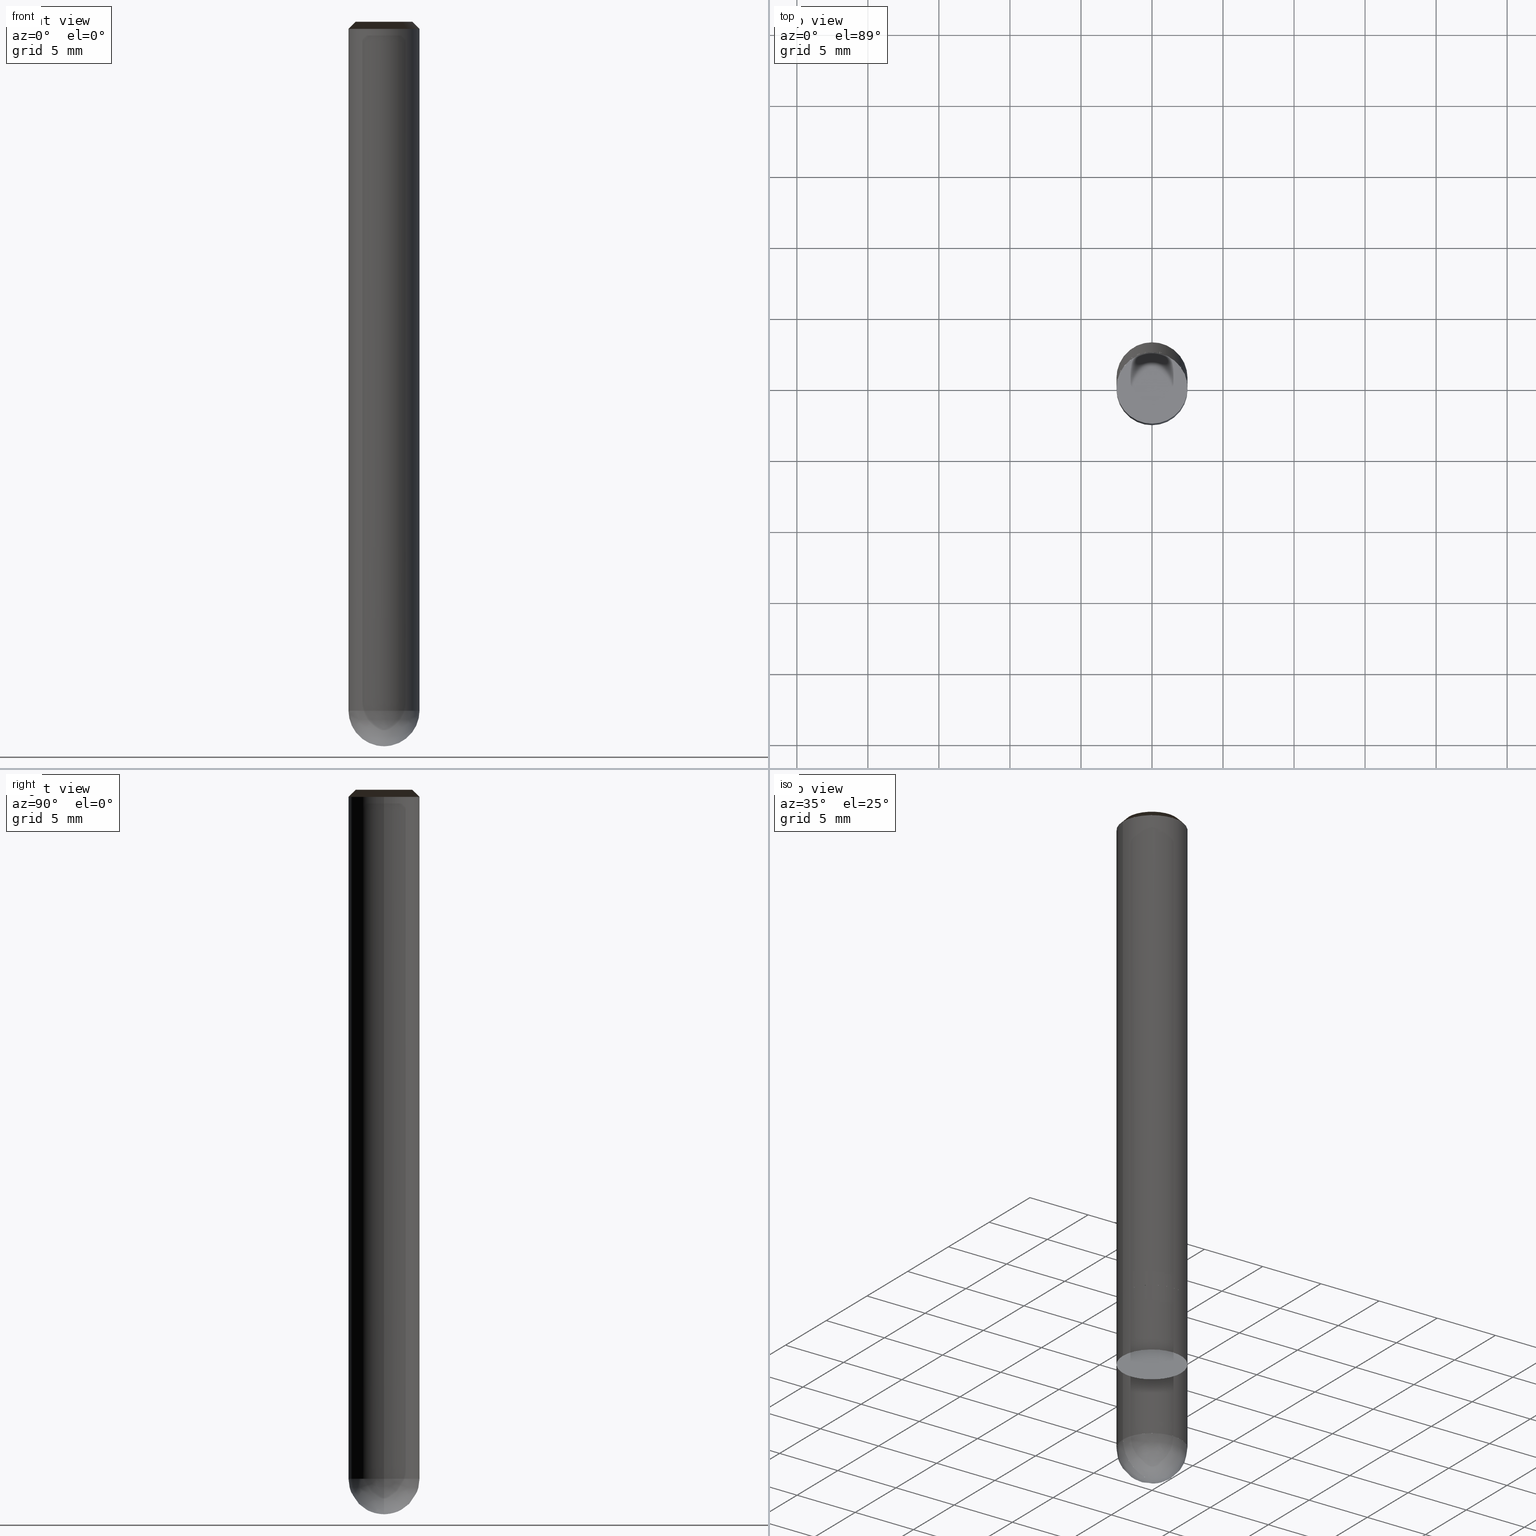
[diagram: canonical four-view strip — front | top / right | iso, engineering-drawing reading convention]
A machine part, canonical four-view strip (front | top / right | iso — engineering-drawing reading convention). The complete STEP part file that produces these views, byte-faithful:
ISO-10303-21;
HEADER;
/* Generated by ISBE GmbH (www.isbe.de) */
/* OPTION: using custom schema-name function */

FILE_DESCRIPTION(
/* description */ (''),
/* implementation_level */ '2;1');

FILE_NAME(
/*name*/ 'Drawing No  1250500   Issue 1',
/*time_stamp*/'2021-9-29T9:2:13',
/*author*/ ('ISBE GmbH'),
/*organization*/ ('ISBE GmbH'),
/*preprocessor_version*/ 'STEP IO v1.0',
/*originating_system*/ '',
/*authorisation*/ '');

FILE_SCHEMA (('AUTOMOTIVE_DESIGN'));
ENDSEC;

DATA;
#10=SHAPE_DEFINITION_REPRESENTATION(#11,#57);
#11=PRODUCT_DEFINITION_SHAPE('Document','',#13);
#12=PRODUCT_DEFINITION_CONTEXT('3D Mechanical Parts',#17,'design');
#13=PRODUCT_DEFINITION('A','First version',#14,#12);
#14=PRODUCT_DEFINITION_FORMATION_WITH_SPECIFIED_SOURCE('A','First version',#19,.MADE.);
#15=PRODUCT_RELATED_PRODUCT_CATEGORY('tool','tool',(#19));
#16=APPLICATION_PROTOCOL_DEFINITION('Draft International Standard', 'automotive_design',1999,#17);
#17=APPLICATION_CONTEXT('data for automotive mechanical design processes');
#18=PRODUCT_CONTEXT('3D Mechanical Parts',#17,'mechanical');
#19=PRODUCT('Document','Document','ISBE converted to STEP',(#18));
#20=(
LENGTH_UNIT()
NAMED_UNIT(*)
SI_UNIT(.MILLI.,.METRE.)
);
#21=(
NAMED_UNIT(*)
PLANE_ANGLE_UNIT()
SI_UNIT($,.RADIAN.)
);
#22=DIMENSIONAL_EXPONENTS(0.,0.,0.,0.,0.,0.,0.);
#23=PLANE_ANGLE_MEASURE_WITH_UNIT(PLANE_ANGLE_MEASURE(0.01745329252),#21);
#24=(
CONVERSION_BASED_UNIT('DEGREES',#23)
NAMED_UNIT(#22)
PLANE_ANGLE_UNIT()
);
#25=(
NAMED_UNIT(*)
SI_UNIT($,.STERADIAN.)
SOLID_ANGLE_UNIT()
);
#26=UNCERTAINTY_MEASURE_WITH_UNIT(LENGTH_MEASURE(0.001),#20, 'DISTANCE_ACCURACY_VALUE', 'Maximum model space distance between geometric entities at asserted connectivities');
#27=(
GEOMETRIC_REPRESENTATION_CONTEXT(3)
GLOBAL_UNCERTAINTY_ASSIGNED_CONTEXT((#26))
GLOBAL_UNIT_ASSIGNED_CONTEXT((#25,#24,#20))
REPRESENTATION_CONTEXT('ID1','3D')
);
#28=CARTESIAN_POINT('',(0.0,0.0,0.0));
#29=DIRECTION('',(1.0,0.0,0.0));
#30=DIRECTION('',(0.0,0.0,1.0));
#31=AXIS2_PLACEMENT_3D('',#28,#30,#29);
#32=CARTESIAN_POINT('',(0.0,0.0,0.0));
#33=DIRECTION('',(1.0,0.0,0.0));
#34=DIRECTION('',(0.0,0.0,1.0));
#35=AXIS2_PLACEMENT_3D('',#32,#34,#33);
#36=CARTESIAN_POINT('',(0.0,0.0,0.0));
#37=DIRECTION('',(1.0,0.0,0.0));
#38=DIRECTION('',(0.0,0.0,1.0));
#39=AXIS2_PLACEMENT_3D('',#36,#38,#37);
#40=CARTESIAN_POINT('',(0.0,0.0,0.0));
#41=DIRECTION('',(0.0,0.0,1.0));
#42=DIRECTION('',(1.0,0.0,0.0));
#43=AXIS2_PLACEMENT_3D('MCS',#40,#42,#41);
#44=CARTESIAN_POINT('',(0.0,0.0,37.0));
#45=DIRECTION('',(0.0,0.0,1.0));
#46=DIRECTION('',(1.0,0.0,0.0));
#47=AXIS2_PLACEMENT_3D('PCS',#44,#46,#45);
#48=CARTESIAN_POINT('',(0.0,0.0,-14.0));
#49=DIRECTION('',(0.0,0.0,1.0));
#50=DIRECTION('',(1.0,0.0,0.0));
#51=AXIS2_PLACEMENT_3D('CIP',#48,#50,#49);
#52=CARTESIAN_POINT('',(0.0,-2.5,-14.0));
#53=DIRECTION('',(0.0,0.0,1.0));
#54=DIRECTION('',(1.0,0.0,0.0));
#55=AXIS2_PLACEMENT_3D('CRP',#52,#54,#53);
#57=SHAPE_REPRESENTATION('Document',(#31,#35,#39,#43,#47,#51,#55),#27);
#58=DIRECTION('',(1.0,0.0,0.0));
#59=DIRECTION('',(0.0,0.0,1.0));
#60=CARTESIAN_POINT('',(-0.024998726725,-0.000252313601,-13.999599252332));
#61=CARTESIAN_POINT('',(-0.024214801927,-0.076382530875,-13.998715540502));
#62=CARTESIAN_POINT('',(-0.023228644848,-0.158482291947,-13.994863481876));
#63=CARTESIAN_POINT('',(-0.021973552647,-0.239049780144,-13.988447782373));
#64=CARTESIAN_POINT('',(-0.020299546149,-0.319047772958,-13.979475034558));
#65=CARTESIAN_POINT('',(-0.018067305115,-0.39859047038,-13.967954458536));
#66=CARTESIAN_POINT('',(-0.015141755148,-0.477656634566,-13.953897892478));
#67=CARTESIAN_POINT('',(-0.011391824297,-0.556185683153,-13.937319780455));
#68=CARTESIAN_POINT('',(-0.006690918713,-0.634101160085,-13.918237157598));
#69=CARTESIAN_POINT('',(-0.000917546966,-0.711318374795,-13.896669632592));
#70=CARTESIAN_POINT('',(0.006044020743,-0.787747358914,-13.872639367527));
#71=CARTESIAN_POINT('',(0.014303091102,-0.863294157099,-13.846171055124));
#72=CARTESIAN_POINT('',(0.023961896654,-0.937861454829,-13.817291893365));
#73=CARTESIAN_POINT('',(0.03511496199,-1.011348929588,-13.78603155754));
#74=CARTESIAN_POINT('',(0.047848492012,-1.083653492129,-13.752422169756));
#75=CARTESIAN_POINT('',(0.062239786453,-1.15466949648,-13.716498265933));
#76=CARTESIAN_POINT('',(0.078356684679,-1.224288958537,-13.678296760308));
#77=CARTESIAN_POINT('',(0.096257044815,-1.292401804518,-13.637856907513));
#78=CARTESIAN_POINT('',(0.115988261284,-1.358896160855,-13.59522026223));
#79=CARTESIAN_POINT('',(0.13758682494,-1.423658691729,-13.550430636492));
#80=CARTESIAN_POINT('',(0.161077929994,-1.486574987092,-13.50353405467));
#81=CARTESIAN_POINT('',(0.186475131943,-1.547530001827,-13.45457870617));
#82=CARTESIAN_POINT('',(0.21378006066,-1.606408545073,-13.403614895923));
#83=CARTESIAN_POINT('',(0.242982192653,-1.663095817472,-13.350694992688));
#84=CARTESIAN_POINT('',(0.274058686359,-1.717477993023,-13.295873375244));
#85=CARTESIAN_POINT('',(0.306974284042,-1.769442841362,-13.239206376509));
#86=CARTESIAN_POINT('',(0.341681283548,-1.818880385411,-13.180752225653));
#87=CARTESIAN_POINT('',(0.378119582776,-1.865683588688,-13.120570988269));
#88=CARTESIAN_POINT('',(0.416216799237,-1.909749065884,-13.058724504647));
#89=CARTESIAN_POINT('',(0.455888466522,-1.950977809795,-12.995276326228));
#90=CARTESIAN_POINT('',(0.497038308927,-1.989275927197,-12.930291650305));
#91=CARTESIAN_POINT('',(0.539558594768,-2.024555375896,-12.863837253026));
#92=CARTESIAN_POINT('',(0.583330568255,-2.056734694885,-12.795981420776));
#93=CARTESIAN_POINT('',(0.628224958997,-2.085739719347,-12.72679388001));
#94=CARTESIAN_POINT('',(0.674102567459,-2.111504272178,-12.656345725602));
#95=CARTESIAN_POINT('',(0.720814923842,-2.133970823693,-12.584709347794));
#96=CARTESIAN_POINT('',(0.768205017087,-2.153091111353,-12.511958357806));
#97=CARTESIAN_POINT('',(0.816108089865,-2.168826711545,-12.438167512198));
#98=CARTESIAN_POINT('',(0.864352494631,-2.181149555837,-12.363412636053));
#99=CARTESIAN_POINT('',(0.91276060506,-2.190042384564,-12.287770545059));
#100=CARTESIAN_POINT('',(0.961149776469,-2.195499131173,-12.211318966578));
#101=CARTESIAN_POINT('',(1.009333348177,-2.197525231401,-12.134136459774));
#102=CARTESIAN_POINT('',(1.057121680145,-2.196137852131,-12.056302334891));
#103=CARTESIAN_POINT('',(1.104323215766,-2.191366035565,-11.977896571753));
#104=CARTESIAN_POINT('',(1.150745562231,-2.183250755276,-11.898999737583));
#105=CARTESIAN_POINT('',(1.196196579605,-2.171844881647,-11.819692904211));
#106=CARTESIAN_POINT('',(1.240485469523,-2.157213055194,-11.740057564769));
#107=CARTESIAN_POINT('',(1.283423854338,-2.139431467309,-11.660175549952));
#108=CARTESIAN_POINT('',(1.324826837576,-2.118587549001,-11.580128943929));
#109=CARTESIAN_POINT('',(1.364514036683,-2.094779569237,-11.5));
#110=CARTESIAN_POINT('',(1.402914083354,-2.069258822556,-11.420138888889));
#111=CARTESIAN_POINT('',(1.44083694348,-2.043034239141,-11.340277777778));
#112=CARTESIAN_POINT('',(1.478269717998,-2.016114739009,-11.260416666667));
#113=CARTESIAN_POINT('',(1.515199674541,-1.988509478547,-11.180555555556));
#114=CARTESIAN_POINT('',(1.551614251771,-1.960227847394,-11.100694444444));
#115=CARTESIAN_POINT('',(1.587501063651,-1.931279465253,-11.020833333333));
#116=CARTESIAN_POINT('',(1.622847903656,-1.901674178612,-10.940972222222));
#117=CARTESIAN_POINT('',(1.65764274893,-1.871422057399,-10.861111111111));
#118=CARTESIAN_POINT('',(1.691873764369,-1.840533391558,-10.78125));
#119=CARTESIAN_POINT('',(1.725529306652,-1.809018687544,-10.701388888889));
#120=CARTESIAN_POINT('',(1.758597928199,-1.776888664754,-10.621527777778));
#121=CARTESIAN_POINT('',(1.791068381064,-1.74415425188,-10.541666666667));
#122=CARTESIAN_POINT('',(1.822929620762,-1.710826583189,-10.461805555556));
#123=CARTESIAN_POINT('',(1.854170810026,-1.676916994739,-10.381944444444));
#124=CARTESIAN_POINT('',(1.884781322493,-1.642437020522,-10.302083333333));
#125=CARTESIAN_POINT('',(1.914750746316,-1.60739838854,-10.222222222222));
#126=CARTESIAN_POINT('',(1.94406888771,-1.571813016817,-10.142361111111));
#127=CARTESIAN_POINT('',(1.972725774417,-1.535693009345,-10.0625));
#128=CARTESIAN_POINT('',(2.000711659095,-1.499050651967,-9.982638888889));
#129=CARTESIAN_POINT('',(2.028017022639,-1.461898408196,-9.902777777778));
#130=CARTESIAN_POINT('',(2.054632577416,-1.42424891498,-9.822916666667));
#131=CARTESIAN_POINT('',(2.080549270422,-1.386114978401,-9.743055555556));
#132=CARTESIAN_POINT('',(2.105758286367,-1.347509569316,-9.663194444444));
#133=CARTESIAN_POINT('',(2.130251050666,-1.308445818953,-9.583333333333));
#134=CARTESIAN_POINT('',(2.154019232363,-1.268937014437,-9.503472222222));
#135=CARTESIAN_POINT('',(2.17705474696,-1.228996594275,-9.423611111111));
#136=CARTESIAN_POINT('',(2.199349759167,-1.188638143782,-9.34375));
#137=CARTESIAN_POINT('',(2.220896685568,-1.147875390463,-9.263888888889));
#138=CARTESIAN_POINT('',(2.241688197204,-1.106722199343,-9.184027777778));
#139=CARTESIAN_POINT('',(2.261717222057,-1.065192568248,-9.104166666667));
#140=CARTESIAN_POINT('',(2.280976947466,-1.023300623048,-9.024305555556));
#141=CARTESIAN_POINT('',(2.299460822436,-0.981060612849,-8.944444444444));
#142=CARTESIAN_POINT('',(2.31716255987,-0.93848690515,-8.864583333333));
#143=CARTESIAN_POINT('',(2.334076138708,-0.89559398095,-8.784722222222));
#144=CARTESIAN_POINT('',(2.350195805973,-0.852396429831,-8.704861111111));
#145=CARTESIAN_POINT('',(2.365516078728,-0.808908944985,-8.625));
#146=CARTESIAN_POINT('',(2.380031745944,-0.765146318228,-8.545138888889));
#147=CARTESIAN_POINT('',(2.393737870268,-0.721123434957,-8.465277777778));
#148=CARTESIAN_POINT('',(2.406629789705,-0.676855269096,-8.385416666667));
#149=CARTESIAN_POINT('',(2.418703119204,-0.632356877998,-8.305555555556));
#150=CARTESIAN_POINT('',(2.429953752148,-0.587643397326,-8.225694444444));
#151=CARTESIAN_POINT('',(2.440377861752,-0.542730035901,-8.145833333333));
#152=CARTESIAN_POINT('',(2.449971902364,-0.497632070535,-8.065972222222));
#153=CARTESIAN_POINT('',(2.458732610672,-0.452364840827,-7.986111111111));
#154=CARTESIAN_POINT('',(2.466657006813,-0.406943743952,-7.90625));
#155=CARTESIAN_POINT('',(2.473742395385,-0.361384229422,-7.826388888889));
#156=CARTESIAN_POINT('',(2.479986366369,-0.315701793828,-7.746527777778));
#157=CARTESIAN_POINT('',(2.485386795942,-0.269911975572,-7.666666666667));
#158=CARTESIAN_POINT('',(2.489941847206,-0.224030349582,-7.586805555556));
#159=CARTESIAN_POINT('',(2.493649970807,-0.178072522014,-7.506944444444));
#160=CARTESIAN_POINT('',(2.496509905465,-0.13205412494,-7.427083333333));
#161=CARTESIAN_POINT('',(2.498520678405,-0.085990811038,-7.347222222222));
#162=CARTESIAN_POINT('',(2.499681605682,-0.039898248261,-7.267361111111));
#163=CARTESIAN_POINT('',(2.49999229242,0.006207885487,-7.1875));
#164=CARTESIAN_POINT('',(2.499452632941,0.052311907688,-7.107638888889));
#165=CARTESIAN_POINT('',(2.498062810805,0.098398136542,-7.027777777778));
#166=CARTESIAN_POINT('',(2.495823298745,0.144450896298,-6.947916666667));
#167=CARTESIAN_POINT('',(2.492734858509,0.190454522594,-6.868055555556));
#168=CARTESIAN_POINT('',(2.488798540596,0.236393367777,-6.788194444444));
#169=CARTESIAN_POINT('',(2.484015683904,0.28225180623,-6.708333333333));
#170=CARTESIAN_POINT('',(2.478387915272,0.328014239685,-6.628472222222));
#171=CARTESIAN_POINT('',(2.471917148926,0.373665102529,-6.548611111111));
#172=CARTESIAN_POINT('',(2.464605585829,0.419188867098,-6.46875));
#173=CARTESIAN_POINT('',(2.456455712935,0.464570048961,-6.388888888889));
#174=CARTESIAN_POINT('',(2.447470302335,0.509793212183,-6.309027777778));
#175=CARTESIAN_POINT('',(2.437652410324,0.554842974579,-6.229166666667));
#176=CARTESIAN_POINT('',(2.427005376356,0.599704012944,-6.149305555556));
#177=CARTESIAN_POINT('',(2.415532821906,0.644361068264,-6.069444444444));
#178=CARTESIAN_POINT('',(2.403238649245,0.68879895091,-5.989583333333));
#179=CARTESIAN_POINT('',(2.390127040107,0.733002545801,-5.909722222222));
#180=CARTESIAN_POINT('',(2.376202454268,0.776956817546,-5.829861111111));
#181=CARTESIAN_POINT('',(2.36146962803,0.820646815561,-5.75));
#182=CARTESIAN_POINT('',(2.345933572611,0.864057679149,-5.670138888889));
#183=CARTESIAN_POINT('',(2.329599572436,0.90717464256,-5.590277777778));
#184=CARTESIAN_POINT('',(2.312473183346,0.949983040009,-5.510416666667));
#185=CARTESIAN_POINT('',(2.294560230702,0.992468310669,-5.430555555556));
#186=CARTESIAN_POINT('',(2.275866807407,1.034616003619,-5.350694444444));
#187=CARTESIAN_POINT('',(2.256399271834,1.076411782762,-5.270833333333));
#188=CARTESIAN_POINT('',(2.236164245661,1.117841431702,-5.190972222222));
#189=CARTESIAN_POINT('',(2.21516861162,1.158890858576,-5.111111111111));
#190=CARTESIAN_POINT('',(2.193419511158,1.199546100853,-5.03125));
#191=CARTESIAN_POINT('',(0.01271787335,-0.021523375605,-13.999599252332));
#192=CARTESIAN_POINT('',(0.078256613106,0.017220631821,-13.998715540502));
#193=CARTESIAN_POINT('',(0.1488640133,0.05912454944,-13.994863481876));
#194=CARTESIAN_POINT('',(0.218009958698,0.100495235268,-13.988447782373));
#195=CARTESIAN_POINT('',(0.286453249476,0.141943963829,-13.979475034558));
#196=CARTESIAN_POINT('',(0.354223125613,0.183648489982,-13.967954458536));
#197=CARTESIAN_POINT('',(0.421233657394,0.225715172667,-13.953897892478));
#198=CARTESIAN_POINT('',(0.48736684298,0.268227232339,-13.937319780455));
#199=CARTESIAN_POINT('',(0.552493172559,0.311256074462,-13.918237157598));
#200=CARTESIAN_POINT('',(0.616478556234,0.354864568416,-13.896669632592));
#201=CARTESIAN_POINT('',(0.679187214212,0.399107954962,-13.872639367527));
#202=CARTESIAN_POINT('',(0.740483125435,0.444033918797,-13.846171055124));
#203=CARTESIAN_POINT('',(0.800230896785,0.48968233864,-13.817291893365));
#204=CARTESIAN_POINT('',(0.858296384118,0.53608491393,-13.78603155754));
#205=CARTESIAN_POINT('',(0.914547207077,0.58326475568,-13.752422169756));
#206=CARTESIAN_POINT('',(0.9688532237,0.631235984434,-13.716498265933));
#207=CARTESIAN_POINT('',(1.021086997326,0.680003358757,-13.678296760308));
#208=CARTESIAN_POINT('',(1.071124272202,0.729561948362,-13.637856907513));
#209=CARTESIAN_POINT('',(1.118844465764,0.779896861241,-13.59522026223));
#210=CARTESIAN_POINT('',(1.164131180886,0.830983031489,-13.550430636492));
#211=CARTESIAN_POINT('',(1.206872738455,0.88278507291,-13.50353405467));
#212=CARTESIAN_POINT('',(1.246962728729,0.93525720235,-13.45457870617));
#213=CARTESIAN_POINT('',(1.28430057856,0.988343235891,-13.403614895923));
#214=CARTESIAN_POINT('',(1.318792130532,1.04197666024,-13.350694992688));
#215=CARTESIAN_POINT('',(1.350350229219,1.096080781027,-13.295873375244));
#216=CARTESIAN_POINT('',(1.378895309143,1.15056894897,-13.239206376509));
#217=CARTESIAN_POINT('',(1.404355978438,1.205344864256,-13.180752225653));
#218=CARTESIAN_POINT('',(1.42666959184,1.260302958697,-13.120570988269));
#219=CARTESIAN_POINT('',(1.445782806291,1.315328854563,-13.058724504647));
#220=CARTESIAN_POINT('',(1.461652112241,1.370299898198,-12.995276326228));
#221=CARTESIAN_POINT('',(1.474244333626,1.425085765784,-12.930291650305));
#222=CARTESIAN_POINT('',(1.48353708951,1.479549137848,-12.863837253026));
#223=CARTESIAN_POINT('',(1.489519210488,1.533546438355,-12.795981420776));
#224=CARTESIAN_POINT('',(1.492191103138,1.586928633457,-12.72679388001));
#225=CARTESIAN_POINT('',(1.491565056176,1.639542084265,-12.656345725602));
#226=CARTESIAN_POINT('',(1.487665482332,1.691229447321,-12.584709347794));
#227=CARTESIAN_POINT('',(1.480529090551,1.741830615789,-12.511958357806));
#228=CARTESIAN_POINT('',(1.470204983672,1.79118369383,-12.438167512198));
#229=CARTESIAN_POINT('',(1.456754677492,1.839125996094,-12.363412636053));
#230=CARTESIAN_POINT('',(1.440252037867,1.885495063838,-12.287770545059));
#231=CARTESIAN_POINT('',(1.420783133347,1.930129688851,-12.211318966578));
#232=CARTESIAN_POINT('',(1.398446001762,1.972870936109,-12.134136459774));
#233=CARTESIAN_POINT('',(1.373350330085,2.013563155962,-12.056302334891));
#234=CARTESIAN_POINT('',(1.345617047907,2.052054976624,-11.977896571753));
#235=CARTESIAN_POINT('',(1.315377835785,2.088200267822,-11.898999737583));
#236=CARTESIAN_POINT('',(1.282774550783,2.121859066682,-11.819692904211));
#237=CARTESIAN_POINT('',(1.247958572412,2.152898457229,-11.740057564769));
#238=CARTESIAN_POINT('',(1.211090073177,2.181193395334,-11.660175549952));
#239=CARTESIAN_POINT('',(1.172337218789,2.206627471457,-11.580128943929));
#240=CARTESIAN_POINT('',(1.131875303947,2.229093604207,-11.5));
#241=CARTESIAN_POINT('',(1.090573665662,2.24958864679,-11.420138888889));
#242=CARTESIAN_POINT('',(1.048901080157,2.269318515335,-11.340277777778));
#243=CARTESIAN_POINT('',(1.006871721927,2.288276498936,-11.260416666667));
#244=CARTESIAN_POINT('',(0.964499886817,2.306456149232,-11.180555555556));
#245=CARTESIAN_POINT('',(0.921799987164,2.323851282605,-11.100694444444));
#246=CARTESIAN_POINT('',(0.878786546891,2.340455982283,-11.020833333333));
#247=CARTESIAN_POINT('',(0.835474196571,2.35626460035,-10.940972222222));
#248=CARTESIAN_POINT('',(0.791877668446,2.371271759672,-10.861111111111));
#249=CARTESIAN_POINT('',(0.748011791418,2.385472355719,-10.78125));
#250=CARTESIAN_POINT('',(0.703891486008,2.398861558308,-10.701388888889));
#251=CARTESIAN_POINT('',(0.659531759274,2.411434813241,-10.621527777778));
#252=CARTESIAN_POINT('',(0.614947699715,2.423187843857,-10.541666666667));
#253=CARTESIAN_POINT('',(0.57015447213,2.434116652486,-10.461805555556));
#254=CARTESIAN_POINT('',(0.525167312469,2.444217521808,-10.381944444444));
#255=CARTESIAN_POINT('',(0.480001522642,2.453487016118,-10.302083333333));
#256=CARTESIAN_POINT('',(0.43467246532,2.461921982495,-10.222222222222));
#257=CARTESIAN_POINT('',(0.389195558708,2.469519551873,-10.142361111111));
#258=CARTESIAN_POINT('',(0.343586271299,2.476277140018,-10.0625));
#259=CARTESIAN_POINT('',(0.297860116616,2.482192448407,-9.982638888889));
#260=CARTESIAN_POINT('',(0.25203264793,2.487263465011,-9.902777777778));
#261=CARTESIAN_POINT('',(0.206119452978,2.491488464975,-9.822916666667));
#262=CARTESIAN_POINT('',(0.16013614865,2.494866011211,-9.743055555556));
#263=CARTESIAN_POINT('',(0.114098375687,2.497394954881,-9.663194444444));
#264=CARTESIAN_POINT('',(0.068021793356,2.499074435792,-9.583333333333));
#265=CARTESIAN_POINT('',(0.021922074123,2.499903882686,-9.503472222222));
#266=CARTESIAN_POINT('',(-0.024185101674,2.499883013434,-9.423611111111));
#267=CARTESIAN_POINT('',(-0.070284051161,2.499011835137,-9.34375));
#268=CARTESIAN_POINT('',(-0.116359094264,2.497290644115,-9.263888888889));
#269=CARTESIAN_POINT('',(-0.162394559039,2.494720025813,-9.184027777778));
#270=CARTESIAN_POINT('',(-0.208374787004,2.491300854602,-9.104166666667));
#271=CARTESIAN_POINT('',(-0.254284138465,2.487034293476,-9.024305555556));
#272=CARTESIAN_POINT('',(-0.300106997838,2.481921793661,-8.944444444444));
#273=CARTESIAN_POINT('',(-0.345827778956,2.47596509412,-8.864583333333));
#274=CARTESIAN_POINT('',(-0.391430930374,2.469166220963,-8.784722222222));
#275=CARTESIAN_POINT('',(-0.436900940658,2.461527486755,-8.704861111111));
#276=CARTESIAN_POINT('',(-0.482222343658,2.453051489732,-8.625));
#277=CARTESIAN_POINT('',(-0.527379723775,2.443741112915,-8.545138888889));
#278=CARTESIAN_POINT('',(-0.572357721197,2.433599523131,-8.465277777778));
#279=CARTESIAN_POINT('',(-0.617141037131,2.422630169937,-8.385416666667));
#280=CARTESIAN_POINT('',(-0.661714438998,2.410836784443,-8.305555555556));
#281=CARTESIAN_POINT('',(-0.706062765624,2.398223378045,-8.225694444444));
#282=CARTESIAN_POINT('',(-0.750170932389,2.384794241061,-8.145833333333));
#283=CARTESIAN_POINT('',(-0.794023936361,2.370553941273,-8.065972222222));
#284=CARTESIAN_POINT('',(-0.837606861401,2.355507322369,-7.986111111111));
#285=CARTESIAN_POINT('',(-0.880904883232,2.339659502299,-7.90625));
#286=CARTESIAN_POINT('',(-0.923903274486,2.323015871533,-7.826388888889));
#287=CARTESIAN_POINT('',(-0.966587409709,2.305582091228,-7.746527777778));
#288=CARTESIAN_POINT('',(-1.00894277034,2.287364091302,-7.666666666667));
#289=CARTESIAN_POINT('',(-1.050954949646,2.268368068417,-7.586805555556));
#290=CARTESIAN_POINT('',(-1.092609657624,2.248600483872,-7.506944444444));
#291=CARTESIAN_POINT('',(-1.13389272586,2.228068061402,-7.427083333333));
#292=CARTESIAN_POINT('',(-1.174790112352,2.206777784898,-7.347222222222));
#293=CARTESIAN_POINT('',(-1.215287906281,2.184736896024,-7.267361111111));
#294=CARTESIAN_POINT('',(-1.255372332746,2.161952891757,-7.1875));
#295=CARTESIAN_POINT('',(-1.295029757449,2.138433521838,-7.107638888889));
#296=CARTESIAN_POINT('',(-1.334246691332,2.114186786135,-7.027777777778));
#297=CARTESIAN_POINT('',(-1.373009795166,2.089220931921,-6.947916666667));
#298=CARTESIAN_POINT('',(-1.411305884086,2.06354445107,-6.868055555556));
#299=CARTESIAN_POINT('',(-1.449121932079,2.037166077169,-6.788194444444));
#300=CARTESIAN_POINT('',(-1.486445076411,2.010094782544,-6.708333333333));
#301=CARTESIAN_POINT('',(-1.523262622006,1.982339775215,-6.628472222222));
#302=CARTESIAN_POINT('',(-1.55956204576,1.953910495756,-6.548611111111));
#303=CARTESIAN_POINT('',(-1.595331000805,1.924816614088,-6.46875));
#304=CARTESIAN_POINT('',(-1.630557320705,1.895068026192,-6.388888888889));
#305=CARTESIAN_POINT('',(-1.665229023595,1.864674850739,-6.309027777778));
#306=CARTESIAN_POINT('',(-1.699334316259,1.833647425648,-6.229166666667));
#307=CARTESIAN_POINT('',(-1.732861598138,1.801996304574,-6.149305555556));
#308=CARTESIAN_POINT('',(-1.765799465279,1.769732253314,-6.069444444444));
#309=CARTESIAN_POINT('',(-1.79813671421,1.736866246148,-5.989583333333));
#310=CARTESIAN_POINT('',(-1.829862345755,1.703409462104,-5.909722222222));
#311=CARTESIAN_POINT('',(-1.860965568772,1.669373281158,-5.829861111111));
#312=CARTESIAN_POINT('',(-1.891435803826,1.634769280359,-5.75));
#313=CARTESIAN_POINT('',(-1.921262686784,1.599609229897,-5.670138888889));
#314=CARTESIAN_POINT('',(-1.950436072344,1.563905089095,-5.590277777778));
#315=CARTESIAN_POINT('',(-1.978946037486,1.527669002343,-5.510416666667));
#316=CARTESIAN_POINT('',(-2.006782884841,1.490913294966,-5.430555555556));
#317=CARTESIAN_POINT('',(-2.033937145999,1.453650469034,-5.350694444444));
#318=CARTESIAN_POINT('',(-2.060399584722,1.415893199107,-5.270833333333));
#319=CARTESIAN_POINT('',(-2.086161200087,1.377654327926,-5.190972222222));
#320=CARTESIAN_POINT('',(-2.111213229551,1.338946862041,-5.111111111111));
#321=CARTESIAN_POINT('',(-2.135547151928,1.299783967393,-5.03125));
#322=CARTESIAN_POINT('',(0.012280853374,0.021775689206,-13.999599252332));
#323=CARTESIAN_POINT('',(-0.054041811179,0.059161899054,-13.998715540502));
#324=CARTESIAN_POINT('',(-0.125635368453,0.099357742507,-13.994863481876));
#325=CARTESIAN_POINT('',(-0.19603640605,0.138554544876,-13.988447782373));
#326=CARTESIAN_POINT('',(-0.266153703328,0.177103809129,-13.979475034558));
#327=CARTESIAN_POINT('',(-0.336155820498,0.214941980397,-13.967954458536));
#328=CARTESIAN_POINT('',(-0.406091902246,0.251941461899,-13.953897892478));
#329=CARTESIAN_POINT('',(-0.475975018683,0.287958450813,-13.937319780455));
#330=CARTESIAN_POINT('',(-0.545802253846,0.322845085623,-13.918237157598));
#331=CARTESIAN_POINT('',(-0.615561009268,0.356453806379,-13.896669632592));
#332=CARTESIAN_POINT('',(-0.685231234955,0.388639403952,-13.872639367527));
#333=CARTESIAN_POINT('',(-0.754786216538,0.419260238302,-13.846171055124));
#334=CARTESIAN_POINT('',(-0.824192793439,0.448179116189,-13.817291893365));
#335=CARTESIAN_POINT('',(-0.893411346108,0.475264015657,-13.78603155754));
#336=CARTESIAN_POINT('',(-0.96239569909,0.500388736449,-13.752422169756));
#337=CARTESIAN_POINT('',(-1.031093010153,0.523433512045,-13.716498265933));
#338=CARTESIAN_POINT('',(-1.099443682005,0.54428559978,-13.678296760308));
#339=CARTESIAN_POINT('',(-1.167381317017,0.562839856156,-13.637856907513));
#340=CARTESIAN_POINT('',(-1.234832727048,0.578999299615,-13.59522026223));
#341=CARTESIAN_POINT('',(-1.301718005826,0.59267566024,-13.550430636492));
#342=CARTESIAN_POINT('',(-1.367950668449,0.603789914182,-13.50353405467));
#343=CARTESIAN_POINT('',(-1.433437860672,0.612272799476,-13.45457870617));
#344=CARTESIAN_POINT('',(-1.49808063922,0.618065309183,-13.403614895923));
#345=CARTESIAN_POINT('',(-1.561774323185,0.621119157231,-13.350694992688));
#346=CARTESIAN_POINT('',(-1.624408915579,0.621397211997,-13.295873375244));
#347=CARTESIAN_POINT('',(-1.685869593185,0.618873892392,-13.239206376509));
#348=CARTESIAN_POINT('',(-1.746037261986,0.613535521155,-13.180752225653));
#349=CARTESIAN_POINT('',(-1.804789174616,0.605380629991,-13.120570988269));
#350=CARTESIAN_POINT('',(-1.861999605528,0.594420211321,-13.058724504647));
#351=CARTESIAN_POINT('',(-1.917540578764,0.580677911597,-12.995276326228));
#352=CARTESIAN_POINT('',(-1.971282642553,0.564190161413,-12.930291650305));
#353=CARTESIAN_POINT('',(-2.023095684278,0.545006238048,-12.863837253026));
#354=CARTESIAN_POINT('',(-2.072849778742,0.52318825653,-12.795981420776));
#355=CARTESIAN_POINT('',(-2.120416062136,0.498811085891,-12.72679388001));
#356=CARTESIAN_POINT('',(-2.165667623635,0.471962187913,-12.656345725602));
#357=CARTESIAN_POINT('',(-2.208480406174,0.442741376373,-12.584709347794));
#358=CARTESIAN_POINT('',(-2.248734107638,0.411260495565,-12.511958357806));
#359=CARTESIAN_POINT('',(-2.286313073537,0.377643017715,-12.438167512198));
#360=CARTESIAN_POINT('',(-2.321107172124,0.342023559743,-12.363412636053));
#361=CARTESIAN_POINT('',(-2.353012642927,0.304547320727,-12.287770545059));
#362=CARTESIAN_POINT('',(-2.381932909817,0.265369442322,-12.211318966578));
#363=CARTESIAN_POINT('',(-2.407779349939,0.224654295292,-12.134136459774));
#364=CARTESIAN_POINT('',(-2.430472010231,0.182574696169,-12.056302334891));
#365=CARTESIAN_POINT('',(-2.449940263672,0.139311058941,-11.977896571753));
#366=CARTESIAN_POINT('',(-2.466123398016,0.095050487454,-11.898999737583));
#367=CARTESIAN_POINT('',(-2.478971130388,0.049985814966,-11.819692904211));
#368=CARTESIAN_POINT('',(-2.488444041935,0.004314597965,-11.740057564769));
#369=CARTESIAN_POINT('',(-2.494513927515,-0.041761928025,-11.660175549952));
#370=CARTESIAN_POINT('',(-2.497164056365,-0.088039922455,-11.580128943929));
#371=CARTESIAN_POINT('',(-2.49638934063,-0.134314034969,-11.5));
#372=CARTESIAN_POINT('',(-2.493487749016,-0.180329824233,-11.420138888889));
#373=CARTESIAN_POINT('',(-2.489738023638,-0.226284276194,-11.340277777778));
#374=CARTESIAN_POINT('',(-2.485141439925,-0.272161759927,-11.260416666667));
#375=CARTESIAN_POINT('',(-2.479699561358,-0.317946670685,-11.180555555556));
#376=CARTESIAN_POINT('',(-2.473414238935,-0.363623435211,-11.100694444444));
#377=CARTESIAN_POINT('',(-2.466287610542,-0.40917651703,-11.020833333333));
#378=CARTESIAN_POINT('',(-2.458322100227,-0.454590421739,-10.940972222222));
#379=CARTESIAN_POINT('',(-2.449520417375,-0.499849702273,-10.861111111111));
#380=CARTESIAN_POINT('',(-2.439885555787,-0.544938964161,-10.78125));
#381=CARTESIAN_POINT('',(-2.42942079266,-0.589842870764,-10.701388888889));
#382=CARTESIAN_POINT('',(-2.418129687474,-0.634546148486,-10.621527777778));
#383=CARTESIAN_POINT('',(-2.406016080779,-0.679033591977,-10.541666666667));
#384=CARTESIAN_POINT('',(-2.393084092893,-0.723290069297,-10.461805555556));
#385=CARTESIAN_POINT('',(-2.379338122495,-0.767300527069,-10.381944444444));
#386=CARTESIAN_POINT('',(-2.364782845135,-0.811049995596,-10.302083333333));
#387=CARTESIAN_POINT('',(-2.349423211636,-0.854523593955,-10.222222222222));
#388=CARTESIAN_POINT('',(-2.333264446418,-0.897706535055,-10.142361111111));
#389=CARTESIAN_POINT('',(-2.316312045716,-0.940584130672,-10.0625));
#390=CARTESIAN_POINT('',(-2.29857177571,-0.98314179644,-9.982638888889));
#391=CARTESIAN_POINT('',(-2.280049670569,-1.025365056814,-9.902777777778));
#392=CARTESIAN_POINT('',(-2.260752030393,-1.067239549995,-9.822916666667));
#393=CARTESIAN_POINT('',(-2.240685419072,-1.10875103281,-9.743055555556));
#394=CARTESIAN_POINT('',(-2.219856662054,-1.149885385565,-9.663194444444));
#395=CARTESIAN_POINT('',(-2.198272844022,-1.190628616839,-9.583333333333));
#396=CARTESIAN_POINT('',(-2.175941306487,-1.230966868249,-9.503472222222));
#397=CARTESIAN_POINT('',(-2.152869645286,-1.27088641916,-9.423611111111));
#398=CARTESIAN_POINT('',(-2.129065708006,-1.310373691355,-9.34375));
#399=CARTESIAN_POINT('',(-2.104537591304,-1.349415253651,-9.263888888889));
#400=CARTESIAN_POINT('',(-2.079293638165,-1.387997826471,-9.184027777778));
#401=CARTESIAN_POINT('',(-2.053342435054,-1.426108286354,-9.104166666667));
#402=CARTESIAN_POINT('',(-2.026692809001,-1.463733670428,-9.024305555556));
#403=CARTESIAN_POINT('',(-1.999353824597,-1.500861180812,-8.944444444444));
#404=CARTESIAN_POINT('',(-1.971334780914,-1.537478188971,-8.864583333333));
#405=CARTESIAN_POINT('',(-1.942645208333,-1.573572240013,-8.784722222222));
#406=CARTESIAN_POINT('',(-1.913294865315,-1.609131056925,-8.704861111111));
#407=CARTESIAN_POINT('',(-1.88329373507,-1.644142544747,-8.625));
#408=CARTESIAN_POINT('',(-1.852652022169,-1.678594794687,-8.545138888889));
#409=CARTESIAN_POINT('',(-1.821380149071,-1.712476088175,-8.465277777778));
#410=CARTESIAN_POINT('',(-1.789488752575,-1.745774900841,-8.385416666667));
#411=CARTESIAN_POINT('',(-1.756988680206,-1.778479906445,-8.305555555556));
#412=CARTESIAN_POINT('',(-1.723890986524,-1.810579980719,-8.225694444444));
#413=CARTESIAN_POINT('',(-1.690206929363,-1.84206420516,-8.145833333333));
#414=CARTESIAN_POINT('',(-1.655947966003,-1.872921870738,-8.065972222222));
#415=CARTESIAN_POINT('',(-1.621125749271,-1.903142481542,-7.986111111111));
#416=CARTESIAN_POINT('',(-1.58575212358,-1.932715758346,-7.90625));
#417=CARTESIAN_POINT('',(-1.549839120899,-1.961631642111,-7.826388888889));
#418=CARTESIAN_POINT('',(-1.513398956659,-1.9898802974,-7.746527777778));
#419=CARTESIAN_POINT('',(-1.476444025602,-2.01745211573,-7.666666666667));
#420=CARTESIAN_POINT('',(-1.43898689756,-2.044337718835,-7.586805555556));
#421=CARTESIAN_POINT('',(-1.401040313183,-2.070527961858,-7.506944444444));
#422=CARTESIAN_POINT('',(-1.362617179605,-2.096013936462,-7.427083333333));
#423=CARTESIAN_POINT('',(-1.323730566053,-2.120786973861,-7.347222222222));
#424=CARTESIAN_POINT('',(-1.284393699402,-2.144838647763,-7.267361111111));
#425=CARTESIAN_POINT('',(-1.244619959674,-2.168160777244,-7.1875));
#426=CARTESIAN_POINT('',(-1.204422875492,-2.190745429527,-7.107638888889));
#427=CARTESIAN_POINT('',(-1.163816119472,-2.212584922677,-7.027777777778));
#428=CARTESIAN_POINT('',(-1.122813503579,-2.233671828219,-6.947916666667));
#429=CARTESIAN_POINT('',(-1.081428974422,-2.253998973664,-6.868055555556));
#430=CARTESIAN_POINT('',(-1.039676608516,-2.273559444946,-6.788194444444));
#431=CARTESIAN_POINT('',(-0.997570607492,-2.292346588775,-6.708333333333));
#432=CARTESIAN_POINT('',(-0.955125293266,-2.3103540149,-6.628472222222));
#433=CARTESIAN_POINT('',(-0.912355103165,-2.327575598284,-6.548611111111));
#434=CARTESIAN_POINT('',(-0.869274585024,-2.344005481186,-6.46875));
#435=CARTESIAN_POINT('',(-0.82589839223,-2.359638075153,-6.388888888889));
#436=CARTESIAN_POINT('',(-0.78224127874,-2.374468062922,-6.309027777778));
#437=CARTESIAN_POINT('',(-0.738318094065,-2.388490400227,-6.229166666667));
#438=CARTESIAN_POINT('',(-0.694143778217,-2.401700317517,-6.149305555556));
#439=CARTESIAN_POINT('',(-0.649733356627,-2.414093321578,-6.069444444444));
#440=CARTESIAN_POINT('',(-0.605101935035,-2.425665197058,-5.989583333333));
#441=CARTESIAN_POINT('',(-0.560264694351,-2.436412007905,-5.909722222222));
#442=CARTESIAN_POINT('',(-0.515236885495,-2.446330098704,-5.829861111111));
#443=CARTESIAN_POINT('',(-0.470033824205,-2.45541609592,-5.75));
#444=CARTESIAN_POINT('',(-0.424670885827,-2.463666909046,-5.670138888889));
#445=CARTESIAN_POINT('',(-0.379163500092,-2.471079731655,-5.590277777778));
#446=CARTESIAN_POINT('',(-0.33352714586,-2.477652042353,-5.510416666667));
#447=CARTESIAN_POINT('',(-0.28777734586,-2.483381605636,-5.430555555556));
#448=CARTESIAN_POINT('',(-0.241929661407,-2.488266472653,-5.350694444444));
#449=CARTESIAN_POINT('',(-0.195999687112,-2.49230498187,-5.270833333333));
#450=CARTESIAN_POINT('',(-0.150003045574,-2.495495759627,-5.190972222222));
#451=CARTESIAN_POINT('',(-0.10395538207,-2.497837720617,-5.111111111111));
#452=CARTESIAN_POINT('',(-0.05787235923,-2.499330068246,-5.03125));
#453=CARTESIAN_POINT('',(0.0,0.0,-14.0));
#454=CARTESIAN_POINT('',(2.5,0.0,-14.0));
#455=CARTESIAN_POINT('',(2.5,2.5,-14.0));
#456=CARTESIAN_POINT('',(0.0,2.5,-14.0));
#457=CARTESIAN_POINT('',(-2.5,2.5,-14.0));
#458=CARTESIAN_POINT('',(-2.5,0.0,-14.0));
#459=CARTESIAN_POINT('',(2.5,0.0,-11.5));
#460=CARTESIAN_POINT('',(2.5,2.5,-11.5));
#461=CARTESIAN_POINT('',(0.0,2.5,-11.5));
#462=CARTESIAN_POINT('',(-2.5,2.5,-11.5));
#463=CARTESIAN_POINT('',(-2.5,0.0,-11.5));
#464=CARTESIAN_POINT('',(2.5,0.0,-5.0));
#465=CARTESIAN_POINT('',(2.5,2.5,-5.0));
#466=CARTESIAN_POINT('',(0.0,2.5,-5.0));
#467=CARTESIAN_POINT('',(-2.5,2.5,-5.0));
#468=CARTESIAN_POINT('',(-2.5,0.0,-5.0));
#469=CARTESIAN_POINT('',(0.0,0.0,-5.0));
#470=CARTESIAN_POINT('',(-2.5,-2.5,-14.0));
#471=CARTESIAN_POINT('',(0.0,-2.5,-14.0));
#472=CARTESIAN_POINT('',(2.5,-2.5,-14.0));
#473=CARTESIAN_POINT('',(-2.5,-2.5,-11.5));
#474=CARTESIAN_POINT('',(0.0,-2.5,-11.5));
#475=CARTESIAN_POINT('',(2.5,-2.5,-11.5));
#476=CARTESIAN_POINT('',(-2.5,-2.5,-5.0));
#477=CARTESIAN_POINT('',(0.0,-2.5,-5.0));
#478=CARTESIAN_POINT('',(2.5,-2.5,-5.0));
#479=CARTESIAN_POINT('',(2.5,0.0,0.0));
#480=CARTESIAN_POINT('',(2.5,2.5,0.0));
#481=CARTESIAN_POINT('',(0.0,2.5,0.0));
#482=CARTESIAN_POINT('',(-2.5,2.5,0.0));
#483=CARTESIAN_POINT('',(-2.5,0.0,0.0));
#484=CARTESIAN_POINT('',(2.5,0.0,36.5));
#485=CARTESIAN_POINT('',(2.5,2.5,36.5));
#486=CARTESIAN_POINT('',(0.0,2.5,36.5));
#487=CARTESIAN_POINT('',(-2.5,2.5,36.5));
#488=CARTESIAN_POINT('',(-2.5,0.0,36.5));
#489=CARTESIAN_POINT('',(2.0,0.0,37.0));
#490=CARTESIAN_POINT('',(2.0,2.0,37.0));
#491=CARTESIAN_POINT('',(0.0,2.0,37.0));
#492=CARTESIAN_POINT('',(-2.0,2.0,37.0));
#493=CARTESIAN_POINT('',(-2.0,0.0,37.0));
#494=CARTESIAN_POINT('',(0.0,0.0,37.0));
#495=CARTESIAN_POINT('',(-2.5,-2.5,0.0));
#496=CARTESIAN_POINT('',(0.0,-2.5,0.0));
#497=CARTESIAN_POINT('',(2.5,-2.5,0.0));
#498=CARTESIAN_POINT('',(-2.5,-2.5,36.5));
#499=CARTESIAN_POINT('',(0.0,-2.5,36.5));
#500=CARTESIAN_POINT('',(2.5,-2.5,36.5));
#501=CARTESIAN_POINT('',(-2.0,-2.0,37.0));
#502=CARTESIAN_POINT('',(0.0,-2.0,37.0));
#503=CARTESIAN_POINT('',(2.0,-2.0,37.0));
#504=(
BOUNDED_CURVE()
B_SPLINE_CURVE(1,(#60,#61,#62,#63,#64,#65,#66,#67,#68,#69,#70,#71,#72,#73,#74,#75,#76,#77,#78,#79,#80,#81,#82,#83,#84,#85,#86,#87,#88,#89,#90,#91,#92,#93,#94,#95,#96,#97,#98,#99,#100,#101,#102,#103,#104,#105,#106,#107,#108,#109,#110,#111,#112,#113,#114,#115,#116,#117,#118,#119,#120,#121,#122,#123,#124,#125,#126,#127,#128,#129,#130,#131,#132,#133,#134,#135,#136,#137,#138,#139,#140,#141,#142,#143,#144,#145,#146,#147,#148,#149,#150,#151,#152,#153,#154,#155,#156,#157,#158,#159,#160,#161,#162,#163,#164,#165,#166,#167,#168,#169,#170,#171,#172,#173,#174,#175,#176,#177,#178,#179,#180,#181,#182,#183,#184,#185,#186,#187,#188,#189,#190),.UNSPECIFIED.,.F.,.F.)
B_SPLINE_CURVE_WITH_KNOTS((2,1,1,1,1,1,1,1,1,1,1,1,1,1,1,1,1,1,1,1,1,1,1,1,1,1,1,1,1,1,1,1,1,1,1,1,1,1,1,1,1,1,1,1,1,1,1,1,1,1,1,1,1,1,1,1,1,1,1,1,1,1,1,1,1,1,1,1,1,1,1,1,1,1,1,1,1,1,1,1,1,1,1,1,1,1,1,1,1,1,1,1,1,1,1,1,1,1,1,1,1,1,1,1,1,1,1,1,1,1,1,1,1,1,1,1,1,1,1,1,1,1,1,1,1,1,1,1,1,1,2),
(0.0,0.006543942653,0.013608432357,0.020555714519,0.027475901984,0.034386345389,0.04129296997,0.048198580045,0.055104917099,0.062013351091,0.068925162281,0.07584167207,0.082764308361,0.089694638151,0.096634381269,0.103585411783,0.11054975043,0.117529549978,0.124527074781,0.131544675491,0.138584759776,0.145649759838,0.152742097546,0.159864147993,0.167018202285,0.174206430368,0.18143084467,0.188693265282,0.195995287355,0.203338251289,0.210723216233,0.218150937295,0.225621846783,0.233136039691,0.240693263567,0.248292912793,0.255934027254,0.263615295294,0.271335060814,0.279091334289,0.286881807494,0.294703871658,0.302554638757,0.310430965664,0.318329480823,0.326246613154,0.334178622858,0.342121633812,0.350071667238,0.358024676324,0.365950297604,0.373875918884,0.381801540164,0.389727161444,0.397652782724,0.405578404004,0.413504025284,0.421429646564,0.429355267844,0.437280889124,0.445206510404,0.453132131684,0.461057752963,0.468983374243,0.476908995523,0.484834616803,0.492760238083,0.500685859363,0.508611480643,0.516537101923,0.524462723203,0.532388344483,0.540313965763,0.548239587043,0.556165208323,0.564090829603,0.572016450883,0.579942072163,0.587867693443,0.595793314723,0.603718936003,0.611644557282,0.619570178562,0.627495799842,0.635421421122,0.643347042402,0.651272663682,0.659198284962,0.667123906242,0.675049527522,0.682975148802,0.690900770082,0.698826391362,0.706752012642,0.714677633922,0.722603255202,0.730528876482,0.738454497762,0.746380119042,0.754305740322,0.762231361602,0.770156982881,0.778082604161,0.786008225441,0.793933846721,0.801859468001,0.809785089281,0.817710710561,0.825636331841,0.833561953121,0.841487574401,0.849413195681,0.857338816961,0.865264438241,0.873190059521,0.881115680801,0.889041302081,0.896966923361,0.904892544641,0.912818165921,0.920743787201,0.92866940848,0.93659502976,0.94452065104,0.95244627232,0.9603718936,0.96829751488,0.97622313616,0.98414875744,0.99207437872,1.0),.UNSPECIFIED.)
CURVE()
GEOMETRIC_REPRESENTATION_ITEM()
RATIONAL_B_SPLINE_CURVE((1.0,1.0,1.0,1.0,1.0,1.0,1.0,1.0,1.0,1.0,1.0,1.0,1.0,1.0,1.0,1.0,1.0,1.0,1.0,1.0,1.0,1.0,1.0,1.0,1.0,1.0,1.0,1.0,1.0,1.0,1.0,1.0,1.0,1.0,1.0,1.0,1.0,1.0,1.0,1.0,1.0,1.0,1.0,1.0,1.0,1.0,1.0,1.0,1.0,1.0,1.0,1.0,1.0,1.0,1.0,1.0,1.0,1.0,1.0,1.0,1.0,1.0,1.0,1.0,1.0,1.0,1.0,1.0,1.0,1.0,1.0,1.0,1.0,1.0,1.0,1.0,1.0,1.0,1.0,1.0,1.0,1.0,1.0,1.0,1.0,1.0,1.0,1.0,1.0,1.0,1.0,1.0,1.0,1.0,1.0,1.0,1.0,1.0,1.0,1.0,1.0,1.0,1.0,1.0,1.0,1.0,1.0,1.0,1.0,1.0,1.0,1.0,1.0,1.0,1.0,1.0,1.0,1.0,1.0,1.0,1.0,1.0,1.0,1.0,1.0,1.0,1.0,1.0,1.0,1.0,1.0))
REPRESENTATION_ITEM('')
);
#505=(
BOUNDED_CURVE()
B_SPLINE_CURVE(1,(#191,#192,#193,#194,#195,#196,#197,#198,#199,#200,#201,#202,#203,#204,#205,#206,#207,#208,#209,#210,#211,#212,#213,#214,#215,#216,#217,#218,#219,#220,#221,#222,#223,#224,#225,#226,#227,#228,#229,#230,#231,#232,#233,#234,#235,#236,#237,#238,#239,#240,#241,#242,#243,#244,#245,#246,#247,#248,#249,#250,#251,#252,#253,#254,#255,#256,#257,#258,#259,#260,#261,#262,#263,#264,#265,#266,#267,#268,#269,#270,#271,#272,#273,#274,#275,#276,#277,#278,#279,#280,#281,#282,#283,#284,#285,#286,#287,#288,#289,#290,#291,#292,#293,#294,#295,#296,#297,#298,#299,#300,#301,#302,#303,#304,#305,#306,#307,#308,#309,#310,#311,#312,#313,#314,#315,#316,#317,#318,#319,#320,#321),.UNSPECIFIED.,.F.,.F.)
B_SPLINE_CURVE_WITH_KNOTS((2,1,1,1,1,1,1,1,1,1,1,1,1,1,1,1,1,1,1,1,1,1,1,1,1,1,1,1,1,1,1,1,1,1,1,1,1,1,1,1,1,1,1,1,1,1,1,1,1,1,1,1,1,1,1,1,1,1,1,1,1,1,1,1,1,1,1,1,1,1,1,1,1,1,1,1,1,1,1,1,1,1,1,1,1,1,1,1,1,1,1,1,1,1,1,1,1,1,1,1,1,1,1,1,1,1,1,1,1,1,1,1,1,1,1,1,1,1,1,1,1,1,1,1,1,1,1,1,1,1,2),
(0.0,0.006543942653,0.013608432357,0.020555714519,0.027475901984,0.034386345389,0.04129296997,0.048198580045,0.055104917099,0.062013351091,0.068925162281,0.07584167207,0.082764308361,0.089694638151,0.096634381269,0.103585411783,0.11054975043,0.117529549978,0.124527074781,0.131544675491,0.138584759776,0.145649759838,0.152742097546,0.159864147993,0.167018202285,0.174206430368,0.18143084467,0.188693265282,0.195995287355,0.203338251289,0.210723216233,0.218150937295,0.225621846783,0.233136039691,0.240693263567,0.248292912793,0.255934027254,0.263615295294,0.271335060814,0.279091334289,0.286881807494,0.294703871658,0.302554638757,0.310430965664,0.318329480823,0.326246613154,0.334178622858,0.342121633812,0.350071667238,0.358024676324,0.365950297604,0.373875918884,0.381801540164,0.389727161444,0.397652782724,0.405578404004,0.413504025284,0.421429646564,0.429355267844,0.437280889124,0.445206510404,0.453132131684,0.461057752963,0.468983374243,0.476908995523,0.484834616803,0.492760238083,0.500685859363,0.508611480643,0.516537101923,0.524462723203,0.532388344483,0.540313965763,0.548239587043,0.556165208323,0.564090829603,0.572016450883,0.579942072163,0.587867693443,0.595793314723,0.603718936003,0.611644557282,0.619570178562,0.627495799842,0.635421421122,0.643347042402,0.651272663682,0.659198284962,0.667123906242,0.675049527522,0.682975148802,0.690900770082,0.698826391362,0.706752012642,0.714677633922,0.722603255202,0.730528876482,0.738454497762,0.746380119042,0.754305740322,0.762231361602,0.770156982881,0.778082604161,0.786008225441,0.793933846721,0.801859468001,0.809785089281,0.817710710561,0.825636331841,0.833561953121,0.841487574401,0.849413195681,0.857338816961,0.865264438241,0.873190059521,0.881115680801,0.889041302081,0.896966923361,0.904892544641,0.912818165921,0.920743787201,0.92866940848,0.93659502976,0.94452065104,0.95244627232,0.9603718936,0.96829751488,0.97622313616,0.98414875744,0.99207437872,1.0),.UNSPECIFIED.)
CURVE()
GEOMETRIC_REPRESENTATION_ITEM()
RATIONAL_B_SPLINE_CURVE((1.0,1.0,1.0,1.0,1.0,1.0,1.0,1.0,1.0,1.0,1.0,1.0,1.0,1.0,1.0,1.0,1.0,1.0,1.0,1.0,1.0,1.0,1.0,1.0,1.0,1.0,1.0,1.0,1.0,1.0,1.0,1.0,1.0,1.0,1.0,1.0,1.0,1.0,1.0,1.0,1.0,1.0,1.0,1.0,1.0,1.0,1.0,1.0,1.0,1.0,1.0,1.0,1.0,1.0,1.0,1.0,1.0,1.0,1.0,1.0,1.0,1.0,1.0,1.0,1.0,1.0,1.0,1.0,1.0,1.0,1.0,1.0,1.0,1.0,1.0,1.0,1.0,1.0,1.0,1.0,1.0,1.0,1.0,1.0,1.0,1.0,1.0,1.0,1.0,1.0,1.0,1.0,1.0,1.0,1.0,1.0,1.0,1.0,1.0,1.0,1.0,1.0,1.0,1.0,1.0,1.0,1.0,1.0,1.0,1.0,1.0,1.0,1.0,1.0,1.0,1.0,1.0,1.0,1.0,1.0,1.0,1.0,1.0,1.0,1.0,1.0,1.0,1.0,1.0,1.0,1.0))
REPRESENTATION_ITEM('')
);
#506=(
BOUNDED_CURVE()
B_SPLINE_CURVE(1,(#322,#323,#324,#325,#326,#327,#328,#329,#330,#331,#332,#333,#334,#335,#336,#337,#338,#339,#340,#341,#342,#343,#344,#345,#346,#347,#348,#349,#350,#351,#352,#353,#354,#355,#356,#357,#358,#359,#360,#361,#362,#363,#364,#365,#366,#367,#368,#369,#370,#371,#372,#373,#374,#375,#376,#377,#378,#379,#380,#381,#382,#383,#384,#385,#386,#387,#388,#389,#390,#391,#392,#393,#394,#395,#396,#397,#398,#399,#400,#401,#402,#403,#404,#405,#406,#407,#408,#409,#410,#411,#412,#413,#414,#415,#416,#417,#418,#419,#420,#421,#422,#423,#424,#425,#426,#427,#428,#429,#430,#431,#432,#433,#434,#435,#436,#437,#438,#439,#440,#441,#442,#443,#444,#445,#446,#447,#448,#449,#450,#451,#452),.UNSPECIFIED.,.F.,.F.)
B_SPLINE_CURVE_WITH_KNOTS((2,1,1,1,1,1,1,1,1,1,1,1,1,1,1,1,1,1,1,1,1,1,1,1,1,1,1,1,1,1,1,1,1,1,1,1,1,1,1,1,1,1,1,1,1,1,1,1,1,1,1,1,1,1,1,1,1,1,1,1,1,1,1,1,1,1,1,1,1,1,1,1,1,1,1,1,1,1,1,1,1,1,1,1,1,1,1,1,1,1,1,1,1,1,1,1,1,1,1,1,1,1,1,1,1,1,1,1,1,1,1,1,1,1,1,1,1,1,1,1,1,1,1,1,1,1,1,1,1,1,2),
(0.0,0.006543942653,0.013608432357,0.020555714519,0.027475901984,0.034386345389,0.04129296997,0.048198580045,0.055104917099,0.062013351091,0.068925162281,0.07584167207,0.082764308361,0.089694638151,0.096634381269,0.103585411783,0.11054975043,0.117529549978,0.124527074781,0.131544675491,0.138584759776,0.145649759838,0.152742097546,0.159864147993,0.167018202285,0.174206430368,0.18143084467,0.188693265282,0.195995287355,0.203338251289,0.210723216233,0.218150937295,0.225621846783,0.233136039691,0.240693263567,0.248292912793,0.255934027254,0.263615295294,0.271335060814,0.279091334289,0.286881807494,0.294703871658,0.302554638757,0.310430965664,0.318329480823,0.326246613154,0.334178622858,0.342121633812,0.350071667238,0.358024676324,0.365950297604,0.373875918884,0.381801540164,0.389727161444,0.397652782724,0.405578404004,0.413504025284,0.421429646564,0.429355267844,0.437280889124,0.445206510404,0.453132131684,0.461057752963,0.468983374243,0.476908995523,0.484834616803,0.492760238083,0.500685859363,0.508611480643,0.516537101923,0.524462723203,0.532388344483,0.540313965763,0.548239587043,0.556165208323,0.564090829603,0.572016450883,0.579942072163,0.587867693443,0.595793314723,0.603718936003,0.611644557282,0.619570178562,0.627495799842,0.635421421122,0.643347042402,0.651272663682,0.659198284962,0.667123906242,0.675049527522,0.682975148802,0.690900770082,0.698826391362,0.706752012642,0.714677633922,0.722603255202,0.730528876482,0.738454497762,0.746380119042,0.754305740322,0.762231361602,0.770156982881,0.778082604161,0.786008225441,0.793933846721,0.801859468001,0.809785089281,0.817710710561,0.825636331841,0.833561953121,0.841487574401,0.849413195681,0.857338816961,0.865264438241,0.873190059521,0.881115680801,0.889041302081,0.896966923361,0.904892544641,0.912818165921,0.920743787201,0.92866940848,0.93659502976,0.94452065104,0.95244627232,0.9603718936,0.96829751488,0.97622313616,0.98414875744,0.99207437872,1.0),.UNSPECIFIED.)
CURVE()
GEOMETRIC_REPRESENTATION_ITEM()
RATIONAL_B_SPLINE_CURVE((1.0,1.0,1.0,1.0,1.0,1.0,1.0,1.0,1.0,1.0,1.0,1.0,1.0,1.0,1.0,1.0,1.0,1.0,1.0,1.0,1.0,1.0,1.0,1.0,1.0,1.0,1.0,1.0,1.0,1.0,1.0,1.0,1.0,1.0,1.0,1.0,1.0,1.0,1.0,1.0,1.0,1.0,1.0,1.0,1.0,1.0,1.0,1.0,1.0,1.0,1.0,1.0,1.0,1.0,1.0,1.0,1.0,1.0,1.0,1.0,1.0,1.0,1.0,1.0,1.0,1.0,1.0,1.0,1.0,1.0,1.0,1.0,1.0,1.0,1.0,1.0,1.0,1.0,1.0,1.0,1.0,1.0,1.0,1.0,1.0,1.0,1.0,1.0,1.0,1.0,1.0,1.0,1.0,1.0,1.0,1.0,1.0,1.0,1.0,1.0,1.0,1.0,1.0,1.0,1.0,1.0,1.0,1.0,1.0,1.0,1.0,1.0,1.0,1.0,1.0,1.0,1.0,1.0,1.0,1.0,1.0,1.0,1.0,1.0,1.0,1.0,1.0,1.0,1.0,1.0,1.0))
REPRESENTATION_ITEM('')
);
#507=SHAPE_REPRESENTATION_RELATIONSHIP('','',#57,#508);
#508=GEOMETRICALLY_BOUNDED_WIREFRAME_SHAPE_REPRESENTATION('Curves',(#509,#31),#27);
#509=GEOMETRIC_CURVE_SET('CurveSet',(#504,#505,#506));
#510=(
BOUNDED_SURFACE()
B_SPLINE_SURFACE(2,2,(
(#453,#453,#453,#453,#453),
(#454,#455,#456,#457,#458),
(#459,#460,#461,#462,#463)
), .UNSPECIFIED.,.F.,.F.,.F.)
B_SPLINE_SURFACE_WITH_KNOTS((3,3),(3,2,3),(
0.0,1.0),(
0.0,0.5,1.0), .UNSPECIFIED.)
GEOMETRIC_REPRESENTATION_ITEM()
RATIONAL_B_SPLINE_SURFACE(((1.0,0.707106781187,1.0,0.707106781187,1.0),
(0.707106781187,0.5,0.707106781187,0.5,0.707106781187),
(1.0,0.707106781187,1.0,0.707106781187,1.0)
))
REPRESENTATION_ITEM('')
SURFACE()
);
#511=(
BOUNDED_CURVE()
B_SPLINE_CURVE(2,(#463,#458,#453),.UNSPECIFIED.,.F.,.F.)
B_SPLINE_CURVE_WITH_KNOTS((3,3),
(0.0,1.0),.UNSPECIFIED.)
CURVE()
GEOMETRIC_REPRESENTATION_ITEM()
RATIONAL_B_SPLINE_CURVE((1.0,0.707106781187,1.0))
REPRESENTATION_ITEM('')
);
#512=(
BOUNDED_CURVE()
B_SPLINE_CURVE(2,(#453,#454,#459),.UNSPECIFIED.,.F.,.F.)
B_SPLINE_CURVE_WITH_KNOTS((3,3),
(0.0,1.0),.UNSPECIFIED.)
CURVE()
GEOMETRIC_REPRESENTATION_ITEM()
RATIONAL_B_SPLINE_CURVE((1.0,0.707106781187,1.0))
REPRESENTATION_ITEM('')
);
#513=(
BOUNDED_CURVE()
B_SPLINE_CURVE(2,(#459,#460,#461,#462,#463),.UNSPECIFIED.,.F.,.F.)
B_SPLINE_CURVE_WITH_KNOTS((3,2,3),
(0.0,0.5,1.0),.UNSPECIFIED.)
CURVE()
GEOMETRIC_REPRESENTATION_ITEM()
RATIONAL_B_SPLINE_CURVE((1.0,0.707106781187,1.0,0.707106781187,1.0))
REPRESENTATION_ITEM('')
);
#514=VERTEX_POINT('',#453);
#515=VERTEX_POINT('',#459);
#516=VERTEX_POINT('',#463);
#517=EDGE_CURVE('',#516,#514,#511,.T.);
#518=EDGE_CURVE('',#514,#515,#512,.T.);
#519=EDGE_CURVE('',#515,#516,#513,.T.);
#520=ORIENTED_EDGE('',*,*,#517,.T.);
#521=ORIENTED_EDGE('',*,*,#518,.T.);
#522=ORIENTED_EDGE('',*,*,#519,.T.);
#523=EDGE_LOOP('',(#520,#521,#522));
#524=FACE_OUTER_BOUND('',#523,.T.);
#525=ADVANCED_FACE('',(#524),#510,.T.);
#526=(
BOUNDED_SURFACE()
B_SPLINE_SURFACE(1,2,(
(#459,#460,#461,#462,#463),
(#464,#465,#466,#467,#468)
), .UNSPECIFIED.,.F.,.F.,.F.)
B_SPLINE_SURFACE_WITH_KNOTS((2,2),(3,2,3),(
0.0,1.0),(
0.0,0.5,1.0), .UNSPECIFIED.)
GEOMETRIC_REPRESENTATION_ITEM()
RATIONAL_B_SPLINE_SURFACE(((1.0,0.707106781187,1.0,0.707106781187,1.0),
(1.0,0.707106781187,1.0,0.707106781187,1.0)
))
REPRESENTATION_ITEM('')
SURFACE()
);
#527=(
BOUNDED_CURVE()
B_SPLINE_CURVE(2,(#463,#462,#461,#460,#459),.UNSPECIFIED.,.F.,.F.)
B_SPLINE_CURVE_WITH_KNOTS((3,2,3),
(0.0,0.5,1.0),.UNSPECIFIED.)
CURVE()
GEOMETRIC_REPRESENTATION_ITEM()
RATIONAL_B_SPLINE_CURVE((1.0,0.707106781187,1.0,0.707106781187,1.0))
REPRESENTATION_ITEM('')
);
#528=(
BOUNDED_CURVE()
B_SPLINE_CURVE(1,(#459,#464),.UNSPECIFIED.,.F.,.F.)
B_SPLINE_CURVE_WITH_KNOTS((2,2),
(0.0,1.0),.UNSPECIFIED.)
CURVE()
GEOMETRIC_REPRESENTATION_ITEM()
RATIONAL_B_SPLINE_CURVE((1.0,1.0))
REPRESENTATION_ITEM('')
);
#529=(
BOUNDED_CURVE()
B_SPLINE_CURVE(2,(#464,#465,#466,#467,#468),.UNSPECIFIED.,.F.,.F.)
B_SPLINE_CURVE_WITH_KNOTS((3,2,3),
(0.0,0.5,1.0),.UNSPECIFIED.)
CURVE()
GEOMETRIC_REPRESENTATION_ITEM()
RATIONAL_B_SPLINE_CURVE((1.0,0.707106781187,1.0,0.707106781187,1.0))
REPRESENTATION_ITEM('')
);
#530=(
BOUNDED_CURVE()
B_SPLINE_CURVE(1,(#468,#463),.UNSPECIFIED.,.F.,.F.)
B_SPLINE_CURVE_WITH_KNOTS((2,2),
(0.0,1.0),.UNSPECIFIED.)
CURVE()
GEOMETRIC_REPRESENTATION_ITEM()
RATIONAL_B_SPLINE_CURVE((1.0,1.0))
REPRESENTATION_ITEM('')
);
#531=VERTEX_POINT('',#459);
#532=VERTEX_POINT('',#463);
#533=VERTEX_POINT('',#464);
#534=VERTEX_POINT('',#468);
#535=EDGE_CURVE('',#532,#531,#527,.T.);
#536=EDGE_CURVE('',#531,#533,#528,.T.);
#537=EDGE_CURVE('',#533,#534,#529,.T.);
#538=EDGE_CURVE('',#534,#532,#530,.T.);
#539=ORIENTED_EDGE('',*,*,#535,.T.);
#540=ORIENTED_EDGE('',*,*,#536,.T.);
#541=ORIENTED_EDGE('',*,*,#537,.T.);
#542=ORIENTED_EDGE('',*,*,#538,.T.);
#543=EDGE_LOOP('',(#539,#540,#541,#542));
#544=FACE_OUTER_BOUND('',#543,.T.);
#545=ADVANCED_FACE('',(#544),#526,.T.);
#546=(
BOUNDED_SURFACE()
B_SPLINE_SURFACE(1,2,(
(#464,#465,#466,#467,#468),
(#469,#469,#469,#469,#469)
), .UNSPECIFIED.,.F.,.F.,.F.)
B_SPLINE_SURFACE_WITH_KNOTS((2,2),(3,2,3),(
0.0,1.0),(
0.0,0.5,1.0), .UNSPECIFIED.)
GEOMETRIC_REPRESENTATION_ITEM()
RATIONAL_B_SPLINE_SURFACE(((1.0,0.707106781187,1.0,0.707106781187,1.0),
(1.0,0.707106781187,1.0,0.707106781187,1.0)
))
REPRESENTATION_ITEM('')
SURFACE()
);
#547=(
BOUNDED_CURVE()
B_SPLINE_CURVE(2,(#468,#467,#466,#465,#464),.UNSPECIFIED.,.F.,.F.)
B_SPLINE_CURVE_WITH_KNOTS((3,2,3),
(0.0,0.5,1.0),.UNSPECIFIED.)
CURVE()
GEOMETRIC_REPRESENTATION_ITEM()
RATIONAL_B_SPLINE_CURVE((1.0,0.707106781187,1.0,0.707106781187,1.0))
REPRESENTATION_ITEM('')
);
#548=(
BOUNDED_CURVE()
B_SPLINE_CURVE(1,(#464,#469),.UNSPECIFIED.,.F.,.F.)
B_SPLINE_CURVE_WITH_KNOTS((2,2),
(0.0,1.0),.UNSPECIFIED.)
CURVE()
GEOMETRIC_REPRESENTATION_ITEM()
RATIONAL_B_SPLINE_CURVE((1.0,1.0))
REPRESENTATION_ITEM('')
);
#549=(
BOUNDED_CURVE()
B_SPLINE_CURVE(1,(#469,#468),.UNSPECIFIED.,.F.,.F.)
B_SPLINE_CURVE_WITH_KNOTS((2,2),
(0.0,1.0),.UNSPECIFIED.)
CURVE()
GEOMETRIC_REPRESENTATION_ITEM()
RATIONAL_B_SPLINE_CURVE((1.0,1.0))
REPRESENTATION_ITEM('')
);
#550=VERTEX_POINT('',#464);
#551=VERTEX_POINT('',#468);
#552=VERTEX_POINT('',#469);
#553=EDGE_CURVE('',#551,#550,#547,.T.);
#554=EDGE_CURVE('',#550,#552,#548,.T.);
#555=EDGE_CURVE('',#552,#551,#549,.T.);
#556=ORIENTED_EDGE('',*,*,#553,.T.);
#557=ORIENTED_EDGE('',*,*,#554,.T.);
#558=ORIENTED_EDGE('',*,*,#555,.T.);
#559=EDGE_LOOP('',(#556,#557,#558));
#560=FACE_OUTER_BOUND('',#559,.T.);
#561=ADVANCED_FACE('',(#560),#546,.T.);
#562=(
BOUNDED_SURFACE()
B_SPLINE_SURFACE(2,2,(
(#453,#453,#453,#453,#453),
(#458,#470,#471,#472,#454),
(#463,#473,#474,#475,#459)
), .UNSPECIFIED.,.F.,.F.,.F.)
B_SPLINE_SURFACE_WITH_KNOTS((3,3),(3,2,3),(
0.0,1.0),(
0.0,0.5,1.0), .UNSPECIFIED.)
GEOMETRIC_REPRESENTATION_ITEM()
RATIONAL_B_SPLINE_SURFACE(((1.0,0.707106781187,1.0,0.707106781187,1.0),
(0.707106781187,0.5,0.707106781187,0.5,0.707106781187),
(1.0,0.707106781187,1.0,0.707106781187,1.0)
))
REPRESENTATION_ITEM('')
SURFACE()
);
#563=(
BOUNDED_CURVE()
B_SPLINE_CURVE(2,(#459,#454,#453),.UNSPECIFIED.,.F.,.F.)
B_SPLINE_CURVE_WITH_KNOTS((3,3),
(0.0,1.0),.UNSPECIFIED.)
CURVE()
GEOMETRIC_REPRESENTATION_ITEM()
RATIONAL_B_SPLINE_CURVE((1.0,0.707106781187,1.0))
REPRESENTATION_ITEM('')
);
#564=(
BOUNDED_CURVE()
B_SPLINE_CURVE(2,(#453,#458,#463),.UNSPECIFIED.,.F.,.F.)
B_SPLINE_CURVE_WITH_KNOTS((3,3),
(0.0,1.0),.UNSPECIFIED.)
CURVE()
GEOMETRIC_REPRESENTATION_ITEM()
RATIONAL_B_SPLINE_CURVE((1.0,0.707106781187,1.0))
REPRESENTATION_ITEM('')
);
#565=(
BOUNDED_CURVE()
B_SPLINE_CURVE(2,(#463,#473,#474,#475,#459),.UNSPECIFIED.,.F.,.F.)
B_SPLINE_CURVE_WITH_KNOTS((3,2,3),
(0.0,0.5,1.0),.UNSPECIFIED.)
CURVE()
GEOMETRIC_REPRESENTATION_ITEM()
RATIONAL_B_SPLINE_CURVE((1.0,0.707106781187,1.0,0.707106781187,1.0))
REPRESENTATION_ITEM('')
);
#566=VERTEX_POINT('',#453);
#567=VERTEX_POINT('',#459);
#568=VERTEX_POINT('',#463);
#569=EDGE_CURVE('',#567,#566,#563,.T.);
#570=EDGE_CURVE('',#566,#568,#564,.T.);
#571=EDGE_CURVE('',#568,#567,#565,.T.);
#572=ORIENTED_EDGE('',*,*,#569,.T.);
#573=ORIENTED_EDGE('',*,*,#570,.T.);
#574=ORIENTED_EDGE('',*,*,#571,.T.);
#575=EDGE_LOOP('',(#572,#573,#574));
#576=FACE_OUTER_BOUND('',#575,.T.);
#577=ADVANCED_FACE('',(#576),#562,.T.);
#578=(
BOUNDED_SURFACE()
B_SPLINE_SURFACE(1,2,(
(#463,#473,#474,#475,#459),
(#468,#476,#477,#478,#464)
), .UNSPECIFIED.,.F.,.F.,.F.)
B_SPLINE_SURFACE_WITH_KNOTS((2,2),(3,2,3),(
0.0,1.0),(
0.0,0.5,1.0), .UNSPECIFIED.)
GEOMETRIC_REPRESENTATION_ITEM()
RATIONAL_B_SPLINE_SURFACE(((1.0,0.707106781187,1.0,0.707106781187,1.0),
(1.0,0.707106781187,1.0,0.707106781187,1.0)
))
REPRESENTATION_ITEM('')
SURFACE()
);
#579=(
BOUNDED_CURVE()
B_SPLINE_CURVE(2,(#459,#475,#474,#473,#463),.UNSPECIFIED.,.F.,.F.)
B_SPLINE_CURVE_WITH_KNOTS((3,2,3),
(0.0,0.5,1.0),.UNSPECIFIED.)
CURVE()
GEOMETRIC_REPRESENTATION_ITEM()
RATIONAL_B_SPLINE_CURVE((1.0,0.707106781187,1.0,0.707106781187,1.0))
REPRESENTATION_ITEM('')
);
#580=(
BOUNDED_CURVE()
B_SPLINE_CURVE(1,(#463,#468),.UNSPECIFIED.,.F.,.F.)
B_SPLINE_CURVE_WITH_KNOTS((2,2),
(0.0,1.0),.UNSPECIFIED.)
CURVE()
GEOMETRIC_REPRESENTATION_ITEM()
RATIONAL_B_SPLINE_CURVE((1.0,1.0))
REPRESENTATION_ITEM('')
);
#581=(
BOUNDED_CURVE()
B_SPLINE_CURVE(2,(#468,#476,#477,#478,#464),.UNSPECIFIED.,.F.,.F.)
B_SPLINE_CURVE_WITH_KNOTS((3,2,3),
(0.0,0.5,1.0),.UNSPECIFIED.)
CURVE()
GEOMETRIC_REPRESENTATION_ITEM()
RATIONAL_B_SPLINE_CURVE((1.0,0.707106781187,1.0,0.707106781187,1.0))
REPRESENTATION_ITEM('')
);
#582=(
BOUNDED_CURVE()
B_SPLINE_CURVE(1,(#464,#459),.UNSPECIFIED.,.F.,.F.)
B_SPLINE_CURVE_WITH_KNOTS((2,2),
(0.0,1.0),.UNSPECIFIED.)
CURVE()
GEOMETRIC_REPRESENTATION_ITEM()
RATIONAL_B_SPLINE_CURVE((1.0,1.0))
REPRESENTATION_ITEM('')
);
#583=VERTEX_POINT('',#459);
#584=VERTEX_POINT('',#463);
#585=VERTEX_POINT('',#464);
#586=VERTEX_POINT('',#468);
#587=EDGE_CURVE('',#583,#584,#579,.T.);
#588=EDGE_CURVE('',#584,#586,#580,.T.);
#589=EDGE_CURVE('',#586,#585,#581,.T.);
#590=EDGE_CURVE('',#585,#583,#582,.T.);
#591=ORIENTED_EDGE('',*,*,#587,.T.);
#592=ORIENTED_EDGE('',*,*,#588,.T.);
#593=ORIENTED_EDGE('',*,*,#589,.T.);
#594=ORIENTED_EDGE('',*,*,#590,.T.);
#595=EDGE_LOOP('',(#591,#592,#593,#594));
#596=FACE_OUTER_BOUND('',#595,.T.);
#597=ADVANCED_FACE('',(#596),#578,.T.);
#598=(
BOUNDED_SURFACE()
B_SPLINE_SURFACE(1,2,(
(#468,#476,#477,#478,#464),
(#469,#469,#469,#469,#469)
), .UNSPECIFIED.,.F.,.F.,.F.)
B_SPLINE_SURFACE_WITH_KNOTS((2,2),(3,2,3),(
0.0,1.0),(
0.0,0.5,1.0), .UNSPECIFIED.)
GEOMETRIC_REPRESENTATION_ITEM()
RATIONAL_B_SPLINE_SURFACE(((1.0,0.707106781187,1.0,0.707106781187,1.0),
(1.0,0.707106781187,1.0,0.707106781187,1.0)
))
REPRESENTATION_ITEM('')
SURFACE()
);
#599=(
BOUNDED_CURVE()
B_SPLINE_CURVE(2,(#464,#478,#477,#476,#468),.UNSPECIFIED.,.F.,.F.)
B_SPLINE_CURVE_WITH_KNOTS((3,2,3),
(0.0,0.5,1.0),.UNSPECIFIED.)
CURVE()
GEOMETRIC_REPRESENTATION_ITEM()
RATIONAL_B_SPLINE_CURVE((1.0,0.707106781187,1.0,0.707106781187,1.0))
REPRESENTATION_ITEM('')
);
#600=(
BOUNDED_CURVE()
B_SPLINE_CURVE(1,(#468,#469),.UNSPECIFIED.,.F.,.F.)
B_SPLINE_CURVE_WITH_KNOTS((2,2),
(0.0,1.0),.UNSPECIFIED.)
CURVE()
GEOMETRIC_REPRESENTATION_ITEM()
RATIONAL_B_SPLINE_CURVE((1.0,1.0))
REPRESENTATION_ITEM('')
);
#601=(
BOUNDED_CURVE()
B_SPLINE_CURVE(1,(#469,#464),.UNSPECIFIED.,.F.,.F.)
B_SPLINE_CURVE_WITH_KNOTS((2,2),
(0.0,1.0),.UNSPECIFIED.)
CURVE()
GEOMETRIC_REPRESENTATION_ITEM()
RATIONAL_B_SPLINE_CURVE((1.0,1.0))
REPRESENTATION_ITEM('')
);
#602=VERTEX_POINT('',#464);
#603=VERTEX_POINT('',#468);
#604=VERTEX_POINT('',#469);
#605=EDGE_CURVE('',#602,#603,#599,.T.);
#606=EDGE_CURVE('',#603,#604,#600,.T.);
#607=EDGE_CURVE('',#604,#602,#601,.T.);
#608=ORIENTED_EDGE('',*,*,#605,.T.);
#609=ORIENTED_EDGE('',*,*,#606,.T.);
#610=ORIENTED_EDGE('',*,*,#607,.T.);
#611=EDGE_LOOP('',(#608,#609,#610));
#612=FACE_OUTER_BOUND('',#611,.T.);
#613=ADVANCED_FACE('',(#612),#598,.T.);
#614=CLOSED_SHELL('',(#525,#545,#561,#577,#597,#613));
#615=SHAPE_REPRESENTATION_RELATIONSHIP('','',#57,#616);
#616=ADVANCED_BREP_SHAPE_REPRESENTATION('Solid0',(#617,#31),#27);
#617=MANIFOLD_SOLID_BREP('brep',#614);
#618=(
BOUNDED_SURFACE()
B_SPLINE_SURFACE(1,2,(
(#469,#469,#469,#469,#469),
(#464,#465,#466,#467,#468)
), .UNSPECIFIED.,.F.,.F.,.F.)
B_SPLINE_SURFACE_WITH_KNOTS((2,2),(3,2,3),(
0.0,1.0),(
0.0,0.5,1.0), .UNSPECIFIED.)
GEOMETRIC_REPRESENTATION_ITEM()
RATIONAL_B_SPLINE_SURFACE(((1.0,0.707106781187,1.0,0.707106781187,1.0),
(1.0,0.707106781187,1.0,0.707106781187,1.0)
))
REPRESENTATION_ITEM('')
SURFACE()
);
#619=(
BOUNDED_CURVE()
B_SPLINE_CURVE(1,(#468,#469),.UNSPECIFIED.,.F.,.F.)
B_SPLINE_CURVE_WITH_KNOTS((2,2),
(0.0,1.0),.UNSPECIFIED.)
CURVE()
GEOMETRIC_REPRESENTATION_ITEM()
RATIONAL_B_SPLINE_CURVE((1.0,1.0))
REPRESENTATION_ITEM('')
);
#620=(
BOUNDED_CURVE()
B_SPLINE_CURVE(1,(#469,#464),.UNSPECIFIED.,.F.,.F.)
B_SPLINE_CURVE_WITH_KNOTS((2,2),
(0.0,1.0),.UNSPECIFIED.)
CURVE()
GEOMETRIC_REPRESENTATION_ITEM()
RATIONAL_B_SPLINE_CURVE((1.0,1.0))
REPRESENTATION_ITEM('')
);
#621=(
BOUNDED_CURVE()
B_SPLINE_CURVE(2,(#464,#465,#466,#467,#468),.UNSPECIFIED.,.F.,.F.)
B_SPLINE_CURVE_WITH_KNOTS((3,2,3),
(0.0,0.5,1.0),.UNSPECIFIED.)
CURVE()
GEOMETRIC_REPRESENTATION_ITEM()
RATIONAL_B_SPLINE_CURVE((1.0,0.707106781187,1.0,0.707106781187,1.0))
REPRESENTATION_ITEM('')
);
#622=VERTEX_POINT('',#464);
#623=VERTEX_POINT('',#468);
#624=VERTEX_POINT('',#469);
#625=EDGE_CURVE('',#623,#624,#619,.T.);
#626=EDGE_CURVE('',#624,#622,#620,.T.);
#627=EDGE_CURVE('',#622,#623,#621,.T.);
#628=ORIENTED_EDGE('',*,*,#625,.T.);
#629=ORIENTED_EDGE('',*,*,#626,.T.);
#630=ORIENTED_EDGE('',*,*,#627,.T.);
#631=EDGE_LOOP('',(#628,#629,#630));
#632=FACE_OUTER_BOUND('',#631,.T.);
#633=ADVANCED_FACE('',(#632),#618,.T.);
#634=(
BOUNDED_SURFACE()
B_SPLINE_SURFACE(1,2,(
(#464,#465,#466,#467,#468),
(#479,#480,#481,#482,#483)
), .UNSPECIFIED.,.F.,.F.,.F.)
B_SPLINE_SURFACE_WITH_KNOTS((2,2),(3,2,3),(
0.0,1.0),(
0.0,0.5,1.0), .UNSPECIFIED.)
GEOMETRIC_REPRESENTATION_ITEM()
RATIONAL_B_SPLINE_SURFACE(((1.0,0.707106781187,1.0,0.707106781187,1.0),
(1.0,0.707106781187,1.0,0.707106781187,1.0)
))
REPRESENTATION_ITEM('')
SURFACE()
);
#635=(
BOUNDED_CURVE()
B_SPLINE_CURVE(2,(#468,#467,#466,#465,#464),.UNSPECIFIED.,.F.,.F.)
B_SPLINE_CURVE_WITH_KNOTS((3,2,3),
(0.0,0.5,1.0),.UNSPECIFIED.)
CURVE()
GEOMETRIC_REPRESENTATION_ITEM()
RATIONAL_B_SPLINE_CURVE((1.0,0.707106781187,1.0,0.707106781187,1.0))
REPRESENTATION_ITEM('')
);
#636=(
BOUNDED_CURVE()
B_SPLINE_CURVE(1,(#464,#479),.UNSPECIFIED.,.F.,.F.)
B_SPLINE_CURVE_WITH_KNOTS((2,2),
(0.0,1.0),.UNSPECIFIED.)
CURVE()
GEOMETRIC_REPRESENTATION_ITEM()
RATIONAL_B_SPLINE_CURVE((1.0,1.0))
REPRESENTATION_ITEM('')
);
#637=(
BOUNDED_CURVE()
B_SPLINE_CURVE(2,(#479,#480,#481,#482,#483),.UNSPECIFIED.,.F.,.F.)
B_SPLINE_CURVE_WITH_KNOTS((3,2,3),
(0.0,0.5,1.0),.UNSPECIFIED.)
CURVE()
GEOMETRIC_REPRESENTATION_ITEM()
RATIONAL_B_SPLINE_CURVE((1.0,0.707106781187,1.0,0.707106781187,1.0))
REPRESENTATION_ITEM('')
);
#638=(
BOUNDED_CURVE()
B_SPLINE_CURVE(1,(#483,#468),.UNSPECIFIED.,.F.,.F.)
B_SPLINE_CURVE_WITH_KNOTS((2,2),
(0.0,1.0),.UNSPECIFIED.)
CURVE()
GEOMETRIC_REPRESENTATION_ITEM()
RATIONAL_B_SPLINE_CURVE((1.0,1.0))
REPRESENTATION_ITEM('')
);
#639=VERTEX_POINT('',#464);
#640=VERTEX_POINT('',#468);
#641=VERTEX_POINT('',#479);
#642=VERTEX_POINT('',#483);
#643=EDGE_CURVE('',#640,#639,#635,.T.);
#644=EDGE_CURVE('',#639,#641,#636,.T.);
#645=EDGE_CURVE('',#641,#642,#637,.T.);
#646=EDGE_CURVE('',#642,#640,#638,.T.);
#647=ORIENTED_EDGE('',*,*,#643,.T.);
#648=ORIENTED_EDGE('',*,*,#644,.T.);
#649=ORIENTED_EDGE('',*,*,#645,.T.);
#650=ORIENTED_EDGE('',*,*,#646,.T.);
#651=EDGE_LOOP('',(#647,#648,#649,#650));
#652=FACE_OUTER_BOUND('',#651,.T.);
#653=ADVANCED_FACE('',(#652),#634,.T.);
#654=(
BOUNDED_SURFACE()
B_SPLINE_SURFACE(1,2,(
(#479,#480,#481,#482,#483),
(#484,#485,#486,#487,#488)
), .UNSPECIFIED.,.F.,.F.,.F.)
B_SPLINE_SURFACE_WITH_KNOTS((2,2),(3,2,3),(
0.0,1.0),(
0.0,0.5,1.0), .UNSPECIFIED.)
GEOMETRIC_REPRESENTATION_ITEM()
RATIONAL_B_SPLINE_SURFACE(((1.0,0.707106781187,1.0,0.707106781187,1.0),
(1.0,0.707106781187,1.0,0.707106781187,1.0)
))
REPRESENTATION_ITEM('')
SURFACE()
);
#655=(
BOUNDED_CURVE()
B_SPLINE_CURVE(2,(#483,#482,#481,#480,#479),.UNSPECIFIED.,.F.,.F.)
B_SPLINE_CURVE_WITH_KNOTS((3,2,3),
(0.0,0.5,1.0),.UNSPECIFIED.)
CURVE()
GEOMETRIC_REPRESENTATION_ITEM()
RATIONAL_B_SPLINE_CURVE((1.0,0.707106781187,1.0,0.707106781187,1.0))
REPRESENTATION_ITEM('')
);
#656=(
BOUNDED_CURVE()
B_SPLINE_CURVE(1,(#479,#484),.UNSPECIFIED.,.F.,.F.)
B_SPLINE_CURVE_WITH_KNOTS((2,2),
(0.0,1.0),.UNSPECIFIED.)
CURVE()
GEOMETRIC_REPRESENTATION_ITEM()
RATIONAL_B_SPLINE_CURVE((1.0,1.0))
REPRESENTATION_ITEM('')
);
#657=(
BOUNDED_CURVE()
B_SPLINE_CURVE(2,(#484,#485,#486,#487,#488),.UNSPECIFIED.,.F.,.F.)
B_SPLINE_CURVE_WITH_KNOTS((3,2,3),
(0.0,0.5,1.0),.UNSPECIFIED.)
CURVE()
GEOMETRIC_REPRESENTATION_ITEM()
RATIONAL_B_SPLINE_CURVE((1.0,0.707106781187,1.0,0.707106781187,1.0))
REPRESENTATION_ITEM('')
);
#658=(
BOUNDED_CURVE()
B_SPLINE_CURVE(1,(#488,#483),.UNSPECIFIED.,.F.,.F.)
B_SPLINE_CURVE_WITH_KNOTS((2,2),
(0.0,1.0),.UNSPECIFIED.)
CURVE()
GEOMETRIC_REPRESENTATION_ITEM()
RATIONAL_B_SPLINE_CURVE((1.0,1.0))
REPRESENTATION_ITEM('')
);
#659=VERTEX_POINT('',#479);
#660=VERTEX_POINT('',#483);
#661=VERTEX_POINT('',#484);
#662=VERTEX_POINT('',#488);
#663=EDGE_CURVE('',#660,#659,#655,.T.);
#664=EDGE_CURVE('',#659,#661,#656,.T.);
#665=EDGE_CURVE('',#661,#662,#657,.T.);
#666=EDGE_CURVE('',#662,#660,#658,.T.);
#667=ORIENTED_EDGE('',*,*,#663,.T.);
#668=ORIENTED_EDGE('',*,*,#664,.T.);
#669=ORIENTED_EDGE('',*,*,#665,.T.);
#670=ORIENTED_EDGE('',*,*,#666,.T.);
#671=EDGE_LOOP('',(#667,#668,#669,#670));
#672=FACE_OUTER_BOUND('',#671,.T.);
#673=ADVANCED_FACE('',(#672),#654,.T.);
#674=(
BOUNDED_SURFACE()
B_SPLINE_SURFACE(1,2,(
(#484,#485,#486,#487,#488),
(#489,#490,#491,#492,#493)
), .UNSPECIFIED.,.F.,.F.,.F.)
B_SPLINE_SURFACE_WITH_KNOTS((2,2),(3,2,3),(
0.0,1.0),(
0.0,0.5,1.0), .UNSPECIFIED.)
GEOMETRIC_REPRESENTATION_ITEM()
RATIONAL_B_SPLINE_SURFACE(((1.0,0.707106781187,1.0,0.707106781187,1.0),
(1.0,0.707106781187,1.0,0.707106781187,1.0)
))
REPRESENTATION_ITEM('')
SURFACE()
);
#675=(
BOUNDED_CURVE()
B_SPLINE_CURVE(2,(#488,#487,#486,#485,#484),.UNSPECIFIED.,.F.,.F.)
B_SPLINE_CURVE_WITH_KNOTS((3,2,3),
(0.0,0.5,1.0),.UNSPECIFIED.)
CURVE()
GEOMETRIC_REPRESENTATION_ITEM()
RATIONAL_B_SPLINE_CURVE((1.0,0.707106781187,1.0,0.707106781187,1.0))
REPRESENTATION_ITEM('')
);
#676=(
BOUNDED_CURVE()
B_SPLINE_CURVE(1,(#484,#489),.UNSPECIFIED.,.F.,.F.)
B_SPLINE_CURVE_WITH_KNOTS((2,2),
(0.0,1.0),.UNSPECIFIED.)
CURVE()
GEOMETRIC_REPRESENTATION_ITEM()
RATIONAL_B_SPLINE_CURVE((1.0,1.0))
REPRESENTATION_ITEM('')
);
#677=(
BOUNDED_CURVE()
B_SPLINE_CURVE(2,(#489,#490,#491,#492,#493),.UNSPECIFIED.,.F.,.F.)
B_SPLINE_CURVE_WITH_KNOTS((3,2,3),
(0.0,0.5,1.0),.UNSPECIFIED.)
CURVE()
GEOMETRIC_REPRESENTATION_ITEM()
RATIONAL_B_SPLINE_CURVE((1.0,0.707106781187,1.0,0.707106781187,1.0))
REPRESENTATION_ITEM('')
);
#678=(
BOUNDED_CURVE()
B_SPLINE_CURVE(1,(#493,#488),.UNSPECIFIED.,.F.,.F.)
B_SPLINE_CURVE_WITH_KNOTS((2,2),
(0.0,1.0),.UNSPECIFIED.)
CURVE()
GEOMETRIC_REPRESENTATION_ITEM()
RATIONAL_B_SPLINE_CURVE((1.0,1.0))
REPRESENTATION_ITEM('')
);
#679=VERTEX_POINT('',#484);
#680=VERTEX_POINT('',#488);
#681=VERTEX_POINT('',#489);
#682=VERTEX_POINT('',#493);
#683=EDGE_CURVE('',#680,#679,#675,.T.);
#684=EDGE_CURVE('',#679,#681,#676,.T.);
#685=EDGE_CURVE('',#681,#682,#677,.T.);
#686=EDGE_CURVE('',#682,#680,#678,.T.);
#687=ORIENTED_EDGE('',*,*,#683,.T.);
#688=ORIENTED_EDGE('',*,*,#684,.T.);
#689=ORIENTED_EDGE('',*,*,#685,.T.);
#690=ORIENTED_EDGE('',*,*,#686,.T.);
#691=EDGE_LOOP('',(#687,#688,#689,#690));
#692=FACE_OUTER_BOUND('',#691,.T.);
#693=ADVANCED_FACE('',(#692),#674,.T.);
#694=(
BOUNDED_SURFACE()
B_SPLINE_SURFACE(1,2,(
(#489,#490,#491,#492,#493),
(#494,#494,#494,#494,#494)
), .UNSPECIFIED.,.F.,.F.,.F.)
B_SPLINE_SURFACE_WITH_KNOTS((2,2),(3,2,3),(
0.0,1.0),(
0.0,0.5,1.0), .UNSPECIFIED.)
GEOMETRIC_REPRESENTATION_ITEM()
RATIONAL_B_SPLINE_SURFACE(((1.0,0.707106781187,1.0,0.707106781187,1.0),
(1.0,0.707106781187,1.0,0.707106781187,1.0)
))
REPRESENTATION_ITEM('')
SURFACE()
);
#695=(
BOUNDED_CURVE()
B_SPLINE_CURVE(2,(#493,#492,#491,#490,#489),.UNSPECIFIED.,.F.,.F.)
B_SPLINE_CURVE_WITH_KNOTS((3,2,3),
(0.0,0.5,1.0),.UNSPECIFIED.)
CURVE()
GEOMETRIC_REPRESENTATION_ITEM()
RATIONAL_B_SPLINE_CURVE((1.0,0.707106781187,1.0,0.707106781187,1.0))
REPRESENTATION_ITEM('')
);
#696=(
BOUNDED_CURVE()
B_SPLINE_CURVE(1,(#489,#494),.UNSPECIFIED.,.F.,.F.)
B_SPLINE_CURVE_WITH_KNOTS((2,2),
(0.0,1.0),.UNSPECIFIED.)
CURVE()
GEOMETRIC_REPRESENTATION_ITEM()
RATIONAL_B_SPLINE_CURVE((1.0,1.0))
REPRESENTATION_ITEM('')
);
#697=(
BOUNDED_CURVE()
B_SPLINE_CURVE(1,(#494,#493),.UNSPECIFIED.,.F.,.F.)
B_SPLINE_CURVE_WITH_KNOTS((2,2),
(0.0,1.0),.UNSPECIFIED.)
CURVE()
GEOMETRIC_REPRESENTATION_ITEM()
RATIONAL_B_SPLINE_CURVE((1.0,1.0))
REPRESENTATION_ITEM('')
);
#698=VERTEX_POINT('',#489);
#699=VERTEX_POINT('',#493);
#700=VERTEX_POINT('',#494);
#701=EDGE_CURVE('',#699,#698,#695,.T.);
#702=EDGE_CURVE('',#698,#700,#696,.T.);
#703=EDGE_CURVE('',#700,#699,#697,.T.);
#704=ORIENTED_EDGE('',*,*,#701,.T.);
#705=ORIENTED_EDGE('',*,*,#702,.T.);
#706=ORIENTED_EDGE('',*,*,#703,.T.);
#707=EDGE_LOOP('',(#704,#705,#706));
#708=FACE_OUTER_BOUND('',#707,.T.);
#709=ADVANCED_FACE('',(#708),#694,.T.);
#710=(
BOUNDED_SURFACE()
B_SPLINE_SURFACE(1,2,(
(#469,#469,#469,#469,#469),
(#468,#476,#477,#478,#464)
), .UNSPECIFIED.,.F.,.F.,.F.)
B_SPLINE_SURFACE_WITH_KNOTS((2,2),(3,2,3),(
0.0,1.0),(
0.0,0.5,1.0), .UNSPECIFIED.)
GEOMETRIC_REPRESENTATION_ITEM()
RATIONAL_B_SPLINE_SURFACE(((1.0,0.707106781187,1.0,0.707106781187,1.0),
(1.0,0.707106781187,1.0,0.707106781187,1.0)
))
REPRESENTATION_ITEM('')
SURFACE()
);
#711=(
BOUNDED_CURVE()
B_SPLINE_CURVE(1,(#464,#469),.UNSPECIFIED.,.F.,.F.)
B_SPLINE_CURVE_WITH_KNOTS((2,2),
(0.0,1.0),.UNSPECIFIED.)
CURVE()
GEOMETRIC_REPRESENTATION_ITEM()
RATIONAL_B_SPLINE_CURVE((1.0,1.0))
REPRESENTATION_ITEM('')
);
#712=(
BOUNDED_CURVE()
B_SPLINE_CURVE(1,(#469,#468),.UNSPECIFIED.,.F.,.F.)
B_SPLINE_CURVE_WITH_KNOTS((2,2),
(0.0,1.0),.UNSPECIFIED.)
CURVE()
GEOMETRIC_REPRESENTATION_ITEM()
RATIONAL_B_SPLINE_CURVE((1.0,1.0))
REPRESENTATION_ITEM('')
);
#713=(
BOUNDED_CURVE()
B_SPLINE_CURVE(2,(#468,#476,#477,#478,#464),.UNSPECIFIED.,.F.,.F.)
B_SPLINE_CURVE_WITH_KNOTS((3,2,3),
(0.0,0.5,1.0),.UNSPECIFIED.)
CURVE()
GEOMETRIC_REPRESENTATION_ITEM()
RATIONAL_B_SPLINE_CURVE((1.0,0.707106781187,1.0,0.707106781187,1.0))
REPRESENTATION_ITEM('')
);
#714=VERTEX_POINT('',#464);
#715=VERTEX_POINT('',#468);
#716=VERTEX_POINT('',#469);
#717=EDGE_CURVE('',#714,#716,#711,.T.);
#718=EDGE_CURVE('',#716,#715,#712,.T.);
#719=EDGE_CURVE('',#715,#714,#713,.T.);
#720=ORIENTED_EDGE('',*,*,#717,.T.);
#721=ORIENTED_EDGE('',*,*,#718,.T.);
#722=ORIENTED_EDGE('',*,*,#719,.T.);
#723=EDGE_LOOP('',(#720,#721,#722));
#724=FACE_OUTER_BOUND('',#723,.T.);
#725=ADVANCED_FACE('',(#724),#710,.T.);
#726=(
BOUNDED_SURFACE()
B_SPLINE_SURFACE(1,2,(
(#468,#476,#477,#478,#464),
(#483,#495,#496,#497,#479)
), .UNSPECIFIED.,.F.,.F.,.F.)
B_SPLINE_SURFACE_WITH_KNOTS((2,2),(3,2,3),(
0.0,1.0),(
0.0,0.5,1.0), .UNSPECIFIED.)
GEOMETRIC_REPRESENTATION_ITEM()
RATIONAL_B_SPLINE_SURFACE(((1.0,0.707106781187,1.0,0.707106781187,1.0),
(1.0,0.707106781187,1.0,0.707106781187,1.0)
))
REPRESENTATION_ITEM('')
SURFACE()
);
#727=(
BOUNDED_CURVE()
B_SPLINE_CURVE(2,(#464,#478,#477,#476,#468),.UNSPECIFIED.,.F.,.F.)
B_SPLINE_CURVE_WITH_KNOTS((3,2,3),
(0.0,0.5,1.0),.UNSPECIFIED.)
CURVE()
GEOMETRIC_REPRESENTATION_ITEM()
RATIONAL_B_SPLINE_CURVE((1.0,0.707106781187,1.0,0.707106781187,1.0))
REPRESENTATION_ITEM('')
);
#728=(
BOUNDED_CURVE()
B_SPLINE_CURVE(1,(#468,#483),.UNSPECIFIED.,.F.,.F.)
B_SPLINE_CURVE_WITH_KNOTS((2,2),
(0.0,1.0),.UNSPECIFIED.)
CURVE()
GEOMETRIC_REPRESENTATION_ITEM()
RATIONAL_B_SPLINE_CURVE((1.0,1.0))
REPRESENTATION_ITEM('')
);
#729=(
BOUNDED_CURVE()
B_SPLINE_CURVE(2,(#483,#495,#496,#497,#479),.UNSPECIFIED.,.F.,.F.)
B_SPLINE_CURVE_WITH_KNOTS((3,2,3),
(0.0,0.5,1.0),.UNSPECIFIED.)
CURVE()
GEOMETRIC_REPRESENTATION_ITEM()
RATIONAL_B_SPLINE_CURVE((1.0,0.707106781187,1.0,0.707106781187,1.0))
REPRESENTATION_ITEM('')
);
#730=(
BOUNDED_CURVE()
B_SPLINE_CURVE(1,(#479,#464),.UNSPECIFIED.,.F.,.F.)
B_SPLINE_CURVE_WITH_KNOTS((2,2),
(0.0,1.0),.UNSPECIFIED.)
CURVE()
GEOMETRIC_REPRESENTATION_ITEM()
RATIONAL_B_SPLINE_CURVE((1.0,1.0))
REPRESENTATION_ITEM('')
);
#731=VERTEX_POINT('',#464);
#732=VERTEX_POINT('',#468);
#733=VERTEX_POINT('',#479);
#734=VERTEX_POINT('',#483);
#735=EDGE_CURVE('',#731,#732,#727,.T.);
#736=EDGE_CURVE('',#732,#734,#728,.T.);
#737=EDGE_CURVE('',#734,#733,#729,.T.);
#738=EDGE_CURVE('',#733,#731,#730,.T.);
#739=ORIENTED_EDGE('',*,*,#735,.T.);
#740=ORIENTED_EDGE('',*,*,#736,.T.);
#741=ORIENTED_EDGE('',*,*,#737,.T.);
#742=ORIENTED_EDGE('',*,*,#738,.T.);
#743=EDGE_LOOP('',(#739,#740,#741,#742));
#744=FACE_OUTER_BOUND('',#743,.T.);
#745=ADVANCED_FACE('',(#744),#726,.T.);
#746=(
BOUNDED_SURFACE()
B_SPLINE_SURFACE(1,2,(
(#483,#495,#496,#497,#479),
(#488,#498,#499,#500,#484)
), .UNSPECIFIED.,.F.,.F.,.F.)
B_SPLINE_SURFACE_WITH_KNOTS((2,2),(3,2,3),(
0.0,1.0),(
0.0,0.5,1.0), .UNSPECIFIED.)
GEOMETRIC_REPRESENTATION_ITEM()
RATIONAL_B_SPLINE_SURFACE(((1.0,0.707106781187,1.0,0.707106781187,1.0),
(1.0,0.707106781187,1.0,0.707106781187,1.0)
))
REPRESENTATION_ITEM('')
SURFACE()
);
#747=(
BOUNDED_CURVE()
B_SPLINE_CURVE(2,(#479,#497,#496,#495,#483),.UNSPECIFIED.,.F.,.F.)
B_SPLINE_CURVE_WITH_KNOTS((3,2,3),
(0.0,0.5,1.0),.UNSPECIFIED.)
CURVE()
GEOMETRIC_REPRESENTATION_ITEM()
RATIONAL_B_SPLINE_CURVE((1.0,0.707106781187,1.0,0.707106781187,1.0))
REPRESENTATION_ITEM('')
);
#748=(
BOUNDED_CURVE()
B_SPLINE_CURVE(1,(#483,#488),.UNSPECIFIED.,.F.,.F.)
B_SPLINE_CURVE_WITH_KNOTS((2,2),
(0.0,1.0),.UNSPECIFIED.)
CURVE()
GEOMETRIC_REPRESENTATION_ITEM()
RATIONAL_B_SPLINE_CURVE((1.0,1.0))
REPRESENTATION_ITEM('')
);
#749=(
BOUNDED_CURVE()
B_SPLINE_CURVE(2,(#488,#498,#499,#500,#484),.UNSPECIFIED.,.F.,.F.)
B_SPLINE_CURVE_WITH_KNOTS((3,2,3),
(0.0,0.5,1.0),.UNSPECIFIED.)
CURVE()
GEOMETRIC_REPRESENTATION_ITEM()
RATIONAL_B_SPLINE_CURVE((1.0,0.707106781187,1.0,0.707106781187,1.0))
REPRESENTATION_ITEM('')
);
#750=(
BOUNDED_CURVE()
B_SPLINE_CURVE(1,(#484,#479),.UNSPECIFIED.,.F.,.F.)
B_SPLINE_CURVE_WITH_KNOTS((2,2),
(0.0,1.0),.UNSPECIFIED.)
CURVE()
GEOMETRIC_REPRESENTATION_ITEM()
RATIONAL_B_SPLINE_CURVE((1.0,1.0))
REPRESENTATION_ITEM('')
);
#751=VERTEX_POINT('',#479);
#752=VERTEX_POINT('',#483);
#753=VERTEX_POINT('',#484);
#754=VERTEX_POINT('',#488);
#755=EDGE_CURVE('',#751,#752,#747,.T.);
#756=EDGE_CURVE('',#752,#754,#748,.T.);
#757=EDGE_CURVE('',#754,#753,#749,.T.);
#758=EDGE_CURVE('',#753,#751,#750,.T.);
#759=ORIENTED_EDGE('',*,*,#755,.T.);
#760=ORIENTED_EDGE('',*,*,#756,.T.);
#761=ORIENTED_EDGE('',*,*,#757,.T.);
#762=ORIENTED_EDGE('',*,*,#758,.T.);
#763=EDGE_LOOP('',(#759,#760,#761,#762));
#764=FACE_OUTER_BOUND('',#763,.T.);
#765=ADVANCED_FACE('',(#764),#746,.T.);
#766=(
BOUNDED_SURFACE()
B_SPLINE_SURFACE(1,2,(
(#488,#498,#499,#500,#484),
(#493,#501,#502,#503,#489)
), .UNSPECIFIED.,.F.,.F.,.F.)
B_SPLINE_SURFACE_WITH_KNOTS((2,2),(3,2,3),(
0.0,1.0),(
0.0,0.5,1.0), .UNSPECIFIED.)
GEOMETRIC_REPRESENTATION_ITEM()
RATIONAL_B_SPLINE_SURFACE(((1.0,0.707106781187,1.0,0.707106781187,1.0),
(1.0,0.707106781187,1.0,0.707106781187,1.0)
))
REPRESENTATION_ITEM('')
SURFACE()
);
#767=(
BOUNDED_CURVE()
B_SPLINE_CURVE(2,(#484,#500,#499,#498,#488),.UNSPECIFIED.,.F.,.F.)
B_SPLINE_CURVE_WITH_KNOTS((3,2,3),
(0.0,0.5,1.0),.UNSPECIFIED.)
CURVE()
GEOMETRIC_REPRESENTATION_ITEM()
RATIONAL_B_SPLINE_CURVE((1.0,0.707106781187,1.0,0.707106781187,1.0))
REPRESENTATION_ITEM('')
);
#768=(
BOUNDED_CURVE()
B_SPLINE_CURVE(1,(#488,#493),.UNSPECIFIED.,.F.,.F.)
B_SPLINE_CURVE_WITH_KNOTS((2,2),
(0.0,1.0),.UNSPECIFIED.)
CURVE()
GEOMETRIC_REPRESENTATION_ITEM()
RATIONAL_B_SPLINE_CURVE((1.0,1.0))
REPRESENTATION_ITEM('')
);
#769=(
BOUNDED_CURVE()
B_SPLINE_CURVE(2,(#493,#501,#502,#503,#489),.UNSPECIFIED.,.F.,.F.)
B_SPLINE_CURVE_WITH_KNOTS((3,2,3),
(0.0,0.5,1.0),.UNSPECIFIED.)
CURVE()
GEOMETRIC_REPRESENTATION_ITEM()
RATIONAL_B_SPLINE_CURVE((1.0,0.707106781187,1.0,0.707106781187,1.0))
REPRESENTATION_ITEM('')
);
#770=(
BOUNDED_CURVE()
B_SPLINE_CURVE(1,(#489,#484),.UNSPECIFIED.,.F.,.F.)
B_SPLINE_CURVE_WITH_KNOTS((2,2),
(0.0,1.0),.UNSPECIFIED.)
CURVE()
GEOMETRIC_REPRESENTATION_ITEM()
RATIONAL_B_SPLINE_CURVE((1.0,1.0))
REPRESENTATION_ITEM('')
);
#771=VERTEX_POINT('',#484);
#772=VERTEX_POINT('',#488);
#773=VERTEX_POINT('',#489);
#774=VERTEX_POINT('',#493);
#775=EDGE_CURVE('',#771,#772,#767,.T.);
#776=EDGE_CURVE('',#772,#774,#768,.T.);
#777=EDGE_CURVE('',#774,#773,#769,.T.);
#778=EDGE_CURVE('',#773,#771,#770,.T.);
#779=ORIENTED_EDGE('',*,*,#775,.T.);
#780=ORIENTED_EDGE('',*,*,#776,.T.);
#781=ORIENTED_EDGE('',*,*,#777,.T.);
#782=ORIENTED_EDGE('',*,*,#778,.T.);
#783=EDGE_LOOP('',(#779,#780,#781,#782));
#784=FACE_OUTER_BOUND('',#783,.T.);
#785=ADVANCED_FACE('',(#784),#766,.T.);
#786=(
BOUNDED_SURFACE()
B_SPLINE_SURFACE(1,2,(
(#493,#501,#502,#503,#489),
(#494,#494,#494,#494,#494)
), .UNSPECIFIED.,.F.,.F.,.F.)
B_SPLINE_SURFACE_WITH_KNOTS((2,2),(3,2,3),(
0.0,1.0),(
0.0,0.5,1.0), .UNSPECIFIED.)
GEOMETRIC_REPRESENTATION_ITEM()
RATIONAL_B_SPLINE_SURFACE(((1.0,0.707106781187,1.0,0.707106781187,1.0),
(1.0,0.707106781187,1.0,0.707106781187,1.0)
))
REPRESENTATION_ITEM('')
SURFACE()
);
#787=(
BOUNDED_CURVE()
B_SPLINE_CURVE(2,(#489,#503,#502,#501,#493),.UNSPECIFIED.,.F.,.F.)
B_SPLINE_CURVE_WITH_KNOTS((3,2,3),
(0.0,0.5,1.0),.UNSPECIFIED.)
CURVE()
GEOMETRIC_REPRESENTATION_ITEM()
RATIONAL_B_SPLINE_CURVE((1.0,0.707106781187,1.0,0.707106781187,1.0))
REPRESENTATION_ITEM('')
);
#788=(
BOUNDED_CURVE()
B_SPLINE_CURVE(1,(#493,#494),.UNSPECIFIED.,.F.,.F.)
B_SPLINE_CURVE_WITH_KNOTS((2,2),
(0.0,1.0),.UNSPECIFIED.)
CURVE()
GEOMETRIC_REPRESENTATION_ITEM()
RATIONAL_B_SPLINE_CURVE((1.0,1.0))
REPRESENTATION_ITEM('')
);
#789=(
BOUNDED_CURVE()
B_SPLINE_CURVE(1,(#494,#489),.UNSPECIFIED.,.F.,.F.)
B_SPLINE_CURVE_WITH_KNOTS((2,2),
(0.0,1.0),.UNSPECIFIED.)
CURVE()
GEOMETRIC_REPRESENTATION_ITEM()
RATIONAL_B_SPLINE_CURVE((1.0,1.0))
REPRESENTATION_ITEM('')
);
#790=VERTEX_POINT('',#489);
#791=VERTEX_POINT('',#493);
#792=VERTEX_POINT('',#494);
#793=EDGE_CURVE('',#790,#791,#787,.T.);
#794=EDGE_CURVE('',#791,#792,#788,.T.);
#795=EDGE_CURVE('',#792,#790,#789,.T.);
#796=ORIENTED_EDGE('',*,*,#793,.T.);
#797=ORIENTED_EDGE('',*,*,#794,.T.);
#798=ORIENTED_EDGE('',*,*,#795,.T.);
#799=EDGE_LOOP('',(#796,#797,#798));
#800=FACE_OUTER_BOUND('',#799,.T.);
#801=ADVANCED_FACE('',(#800),#786,.T.);
#802=CLOSED_SHELL('',(#633,#653,#673,#693,#709,#725,#745,#765,#785,#801));
#803=SHAPE_REPRESENTATION_RELATIONSHIP('','',#57,#804);
#804=ADVANCED_BREP_SHAPE_REPRESENTATION('Solid1',(#805,#31),#27);
#805=MANIFOLD_SOLID_BREP('brep',#802);
#806=PRESENTATION_LAYER_ASSIGNMENT('CUT','',(#617));
#807=PRESENTATION_LAYER_ASSIGNMENT('NOCUT','',(#805));
#808=PRESENTATION_LAYER_ASSIGNMENT('DETAILS','',(#504,#505,#506));
#809=COLOUR_RGB('',0.8,0.8,0.8);
#810=COLOUR_RGB('',0.501960784314,0.501960784314,0.501960784314);
#811=COLOUR_RGB('',0.0,0.0,1.0);
#812=STYLED_ITEM('',(#813),#504);
#813=PRESENTATION_STYLE_ASSIGNMENT((#814));
#814=CURVE_STYLE('',#815,POSITIVE_LENGTH_MEASURE(0.02),#811);
#815=DRAUGHTING_PRE_DEFINED_CURVE_FONT('continuous');
#816=STYLED_ITEM('',(#817),#505);
#817=PRESENTATION_STYLE_ASSIGNMENT((#818));
#818=CURVE_STYLE('',#819,POSITIVE_LENGTH_MEASURE(0.02),#811);
#819=DRAUGHTING_PRE_DEFINED_CURVE_FONT('continuous');
#820=STYLED_ITEM('',(#821),#506);
#821=PRESENTATION_STYLE_ASSIGNMENT((#822));
#822=CURVE_STYLE('',#823,POSITIVE_LENGTH_MEASURE(0.02),#811);
#823=DRAUGHTING_PRE_DEFINED_CURVE_FONT('continuous');
#824=STYLED_ITEM('',(#825),#617);
#825=PRESENTATION_STYLE_ASSIGNMENT((#826));
#826=SURFACE_STYLE_USAGE(.BOTH.,#827);
#827=SURFACE_SIDE_STYLE('',(#828));
#828=SURFACE_STYLE_FILL_AREA(#829);
#829=FILL_AREA_STYLE('',(#830));
#830=FILL_AREA_STYLE_COLOUR('',#809);
#831=STYLED_ITEM('',(#832),#805);
#832=PRESENTATION_STYLE_ASSIGNMENT((#833));
#833=SURFACE_STYLE_USAGE(.BOTH.,#834);
#834=SURFACE_SIDE_STYLE('',(#835));
#835=SURFACE_STYLE_FILL_AREA(#836);
#836=FILL_AREA_STYLE('',(#837));
#837=FILL_AREA_STYLE_COLOUR('',#810);
#838=MECHANICAL_DESIGN_GEOMETRIC_PRESENTATION_REPRESENTATION('',(#812,#816,#820,#824,#831),#27);
#839==CONSTRUCTIVE_GEOMETRY_REPRESENTATION('coordinate systems',(#43,#47,#51,#55), #27);
#840==CONSTRUCTIVE_GEOMETRY_REPRESENTATION_RELATIONSHIP('coordinate systems',$,#57,#839);

ENDSEC;
END-ISO-10303-21;